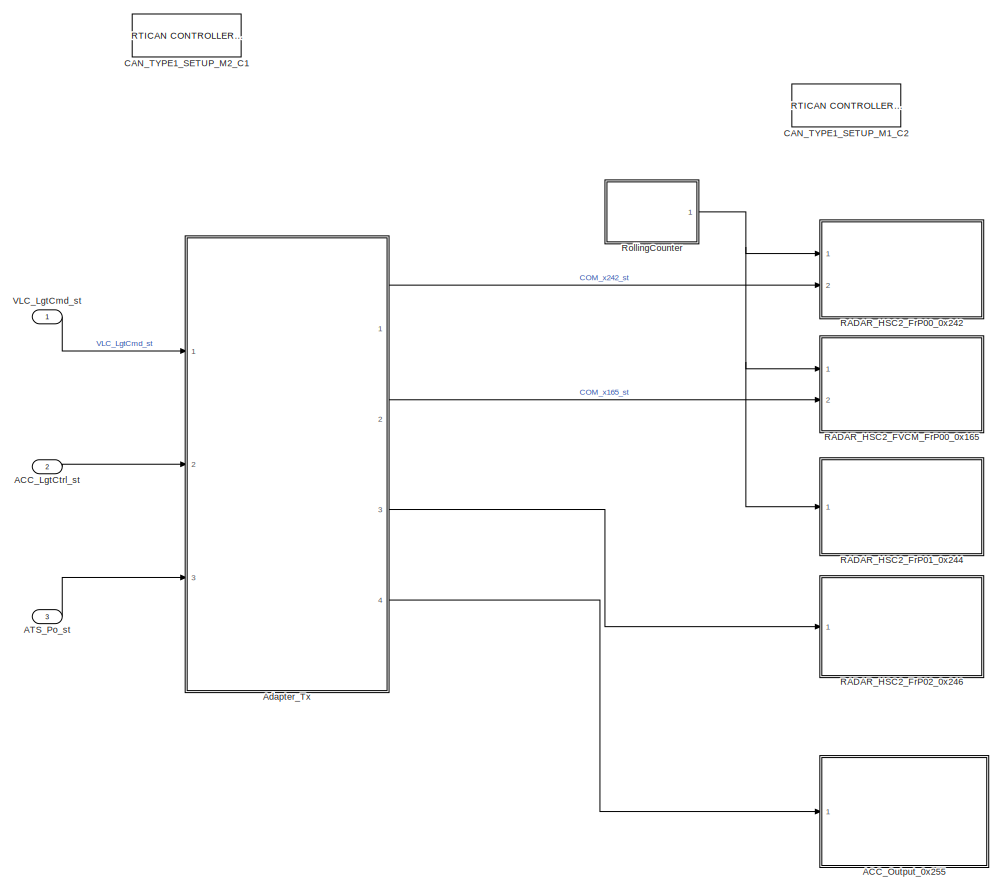
[diagram: root canvas - part 1/2, left side, full height]
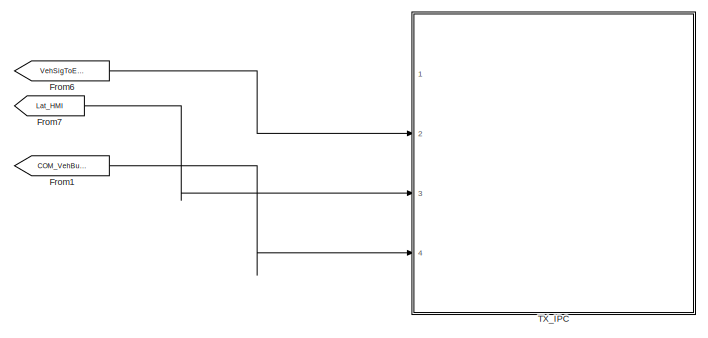
[diagram: root canvas - part 2/2, middle right region]
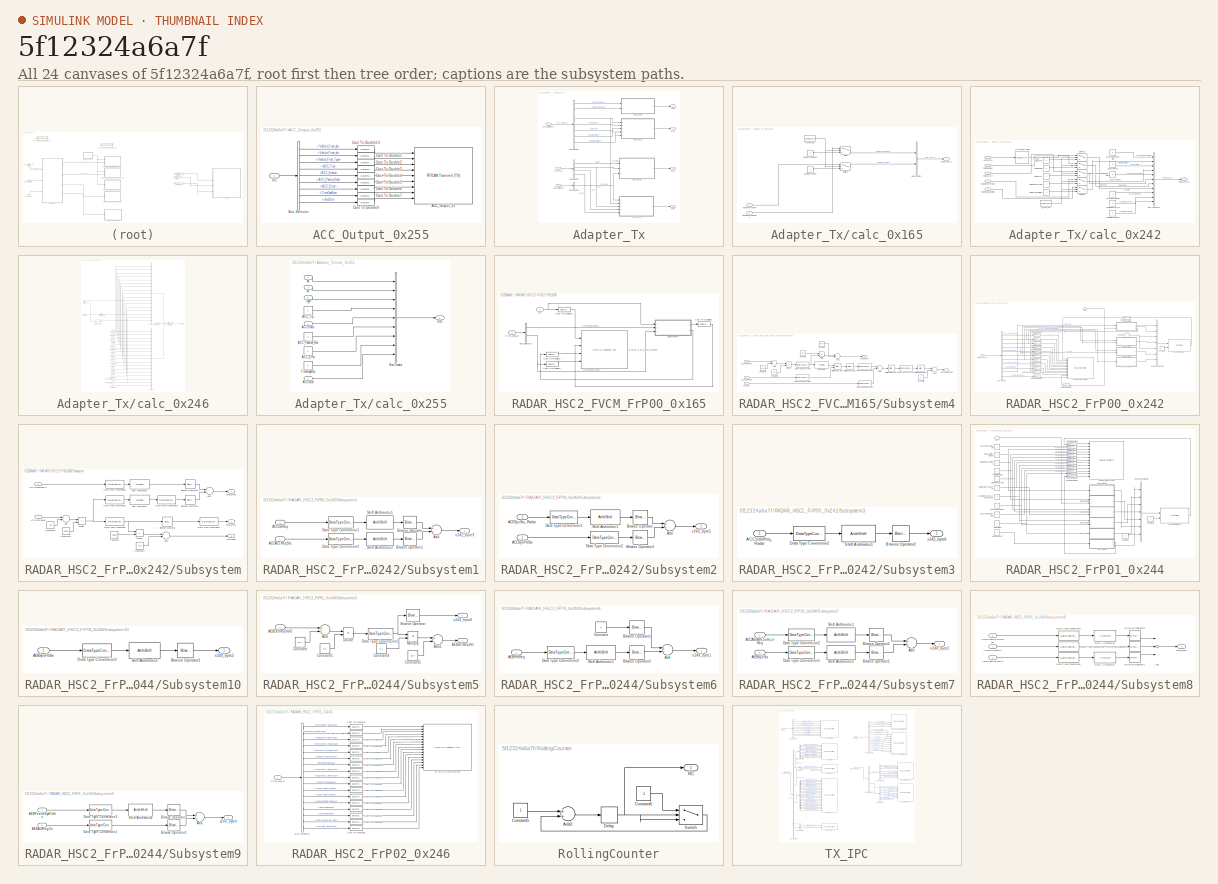
[diagram: thumbnail index - all 24 canvases of the model, root first then tree order]
MODEL slx_5f12324a6a7f
KIND model
CONFIG AbsTol = auto
CONFIG EnableMultiTasking = off
CONFIG FixedStep = 0.005
CONFIG MaxStep = auto
CONFIG MinStep = auto
CONFIG PostLoadFcn = if any(exist('dsrtsu_mdlpostloadfcn', 'file') ~= 0), dsrtsu_mdlpostloadfcn('Execute', bdroot); end
CONFIG RelTol = 1e-3
CONFIG SampleTimeConstraint = Unconstrained
CONFIG Solver = FixedStepDiscrete
CONFIG SolverName = FixedStepDiscrete
CONFIG StartTime = 0.0
CONFIG StopTime = 10.0
BLOCK [Inport] ACC_LgtCtrl_st
  BusOutputAsStruct = on
  IconDisplay = Port number
  OutDataTypeStr = Bus: ACC_LGTCTRL_ST
  Port = 2
BLOCK [SubSystem] ACC_Output_0x255
  Ports = [1]
  RequestExecContextInheritance = off
BLOCK [Reference] ACC_Output_0x255/ACC_Output_01  REF=rtican/RTICAN
Transmit (TX) 
  AttributesFormatString = Group Id: RTICAN3\n
  Ports = [9, 4]
  SourceBlock = rtican/RTICAN\nTransmit (TX)
  SourceProductName = dSPACE RTI CAN Blockset
  SourceType = RTI
BLOCK [BusSelector] ACC_Output_0x255/Bus Selector
  OutputAsBus = off
  OutputSignals = Vehicle_Front_dy,Vehicle_Front_dx,Vehicle_Front_Type,ACC_Tip,ACC_Status,ACC_Passive_Rea,ACC_Error,TimeGapRes,vSetDis
  Ports = [1, 9]
BLOCK [DataTypeConversion] ACC_Output_0x255/Cast To Double1
  OutDataTypeStr = double
  RndMeth = Floor
  SaturateOnIntegerOverflow = off
BLOCK [DataTypeConversion] ACC_Output_0x255/Cast To Double13
  OutDataTypeStr = double
  RndMeth = Floor
  SaturateOnIntegerOverflow = off
BLOCK [DataTypeConversion] ACC_Output_0x255/Cast To Double2
  OutDataTypeStr = double
  RndMeth = Floor
  SaturateOnIntegerOverflow = off
BLOCK [DataTypeConversion] ACC_Output_0x255/Cast To Double3
  OutDataTypeStr = double
  RndMeth = Floor
  SaturateOnIntegerOverflow = off
BLOCK [DataTypeConversion] ACC_Output_0x255/Cast To Double4
  OutDataTypeStr = double
  RndMeth = Floor
  SaturateOnIntegerOverflow = off
BLOCK [DataTypeConversion] ACC_Output_0x255/Cast To Double5
  OutDataTypeStr = double
  RndMeth = Floor
  SaturateOnIntegerOverflow = off
BLOCK [DataTypeConversion] ACC_Output_0x255/Cast To Double6
  OutDataTypeStr = double
  RndMeth = Floor
  SaturateOnIntegerOverflow = off
BLOCK [DataTypeConversion] ACC_Output_0x255/Cast To Double7
  OutDataTypeStr = double
  RndMeth = Floor
  SaturateOnIntegerOverflow = off
BLOCK [DataTypeConversion] ACC_Output_0x255/Cast To Double8
  OutDataTypeStr = double
  RndMeth = Floor
  SaturateOnIntegerOverflow = off
BLOCK [Inport] ACC_Output_0x255/In1
  IconDisplay = Port number
BLOCK [Inport] ATS_Po_st
  IconDisplay = Port number
  OutDataTypeStr = Bus: ATS_PO_ST
  Port = 3
BLOCK [SubSystem] Adapter_Tx
  Ports = [3, 4]
  RequestExecContextInheritance = off
BLOCK [Inport] Adapter_Tx/ACC_LgtCtrl_st
  IconDisplay = Port number
  Port = 2
BLOCK [Inport] Adapter_Tx/ATS_Po_st
  IconDisplay = Port number
  Port = 3
BLOCK [BusSelector] Adapter_Tx/Bus Selector
  OutputAsBus = off
  OutputSignals = Valid,dx,dy,Type
  Ports = [1, 4]
BLOCK [BusSelector] Adapter_Tx/Bus Selector1
  OutputAsBus = off
  OutputSignals = ACCvSet
  Ports = [1, 1]
BLOCK [BusSelector] Adapter_Tx/Bus Selector4
  OutputAsBus = off
  OutputSignals = EngineTorqReq,EngineTorqReqSt,ACCState,CDDEnable,CDDAxtar,CDDDriveoffReq,CDDStandstillReq
  Ports = [1, 7]
BLOCK [Inport] Adapter_Tx/VLC_LgtCmd_st
  IconDisplay = Port number
  OutDataTypeStr = Bus: VLC_LGTCMD_ST
BLOCK [SubSystem] Adapter_Tx/calc_0x165
  Ports = [2, 1]
  RequestExecContextInheritance = off
BLOCK [Inport] Adapter_Tx/calc_0x165/<EngineTorqReq>
  IconDisplay = Port number
BLOCK [Inport] Adapter_Tx/calc_0x165/<EngineTorqReqSt>
  IconDisplay = Port number
  Port = 2
BLOCK [BusCreator] Adapter_Tx/calc_0x165/Bus Creator3
  DisplayOption = bar
  InheritFromInputs = off
  Inputs = 2
  NonVirtualBus = on
  OutDataTypeStr = Bus: x165
  Ports = [2, 1]
BLOCK [Outport] Adapter_Tx/calc_0x165/COM_x165_st
  IconDisplay = Port number
BLOCK [Constant] Adapter_Tx/calc_0x165/EngineTorqReq
  OutDataTypeStr = single
  Value = 0
BLOCK [Constant] Adapter_Tx/calc_0x165/EngineTorqReqSt
  OutDataTypeStr = boolean
  Value = 0
BLOCK [Constant] Adapter_Tx/calc_0x165/P_x165_On
  Value = P_x165_On
BLOCK [Switch] Adapter_Tx/calc_0x165/Switch
  Criteria = u2 > Threshold
  InputSameDT = off
  OutDataTypeStr = Inherit: Inherit via back propagation
  SaturateOnIntegerOverflow = off
BLOCK [Switch] Adapter_Tx/calc_0x165/Switch1
  Criteria = u2 > Threshold
  InputSameDT = off
  OutDataTypeStr = Inherit: Inherit via back propagation
  SaturateOnIntegerOverflow = off
BLOCK [SubSystem] Adapter_Tx/calc_0x242
  Ports = [5, 1]
  RequestExecContextInheritance = off
BLOCK [Lookup_n-D] Adapter_Tx/calc_0x242/1-D Lookup Table
  BreakpointsForDimension1 = [0,1,2,3,4]
  InternalRulePriority = Speed
  NumberOfTableDimensions = 1
  Ports = [1, 1]
  RndMeth = Simplest
  Table = [0,1,2,5,3]
BLOCK [Inport] Adapter_Tx/calc_0x242/<ACCState>
  IconDisplay = Port number
BLOCK [Inport] Adapter_Tx/calc_0x242/<CDDAxtar>
  IconDisplay = Port number
  Port = 3
BLOCK [Inport] Adapter_Tx/calc_0x242/<CDDDriveoffReq>
  IconDisplay = Port number
  Port = 4
BLOCK [Inport] Adapter_Tx/calc_0x242/<CDDEnable>
  IconDisplay = Port number
  Port = 2
BLOCK [Inport] Adapter_Tx/calc_0x242/<CDDStandstillReq>
  IconDisplay = Port number
  Port = 5
BLOCK [Constant] Adapter_Tx/calc_0x242/ACCAccReqValTolMax
  OutDataTypeStr = single
  Value = 0
BLOCK [Constant] Adapter_Tx/calc_0x242/ACCAccReqValTolMin
  OutDataTypeStr = single
  Value = 0
BLOCK [Constant] Adapter_Tx/calc_0x242/ACCMinBrkReqSts
  OutDataTypeStr = boolean
  Value = 0
BLOCK [Constant] Adapter_Tx/calc_0x242/ACCReqBrkPrfrd
  OutDataTypeStr = boolean
  Value = 0
BLOCK [Constant] Adapter_Tx/calc_0x242/ACCState
  OutDataTypeStr = single
  Value = 0
BLOCK [Constant] Adapter_Tx/calc_0x242/ACCSysFltSts
  OutDataTypeStr = single
  Value = 0
BLOCK [BusCreator] Adapter_Tx/calc_0x242/Bus Creator1
  DisplayOption = bar
  InheritFromInputs = on
  Inputs = 11
  NonVirtualBus = on
  OutDataTypeStr = Bus: x242
  Ports = [11, 1]
BLOCK [Constant] Adapter_Tx/calc_0x242/CDDAxtar
  OutDataTypeStr = single
  Value = 0
BLOCK [Constant] Adapter_Tx/calc_0x242/CDDDriveoffReq
  OutDataTypeStr = boolean
  Value = 0
BLOCK [Constant] Adapter_Tx/calc_0x242/CDDEnable
  OutDataTypeStr = boolean
  Value = 0
BLOCK [Constant] Adapter_Tx/calc_0x242/CDDStandstillReq
  OutDataTypeStr = boolean
  Value = 0
BLOCK [Outport] Adapter_Tx/calc_0x242/COM_x242_st
  IconDisplay = Port number
BLOCK [Constant] Adapter_Tx/calc_0x242/ChACCShtdwnMd
  OutDataTypeStr = single
  Value = 0
BLOCK [Constant] Adapter_Tx/calc_0x242/P_x242_On
  Value = P_x242_On
BLOCK [Switch] Adapter_Tx/calc_0x242/Switch2
  Criteria = u2 > Threshold
  InputSameDT = off
  OutDataTypeStr = Inherit: Inherit via back propagation
  SaturateOnIntegerOverflow = off
BLOCK [Switch] Adapter_Tx/calc_0x242/Switch3
  Criteria = u2 > Threshold
  InputSameDT = off
  OutDataTypeStr = Inherit: Inherit via back propagation
  SaturateOnIntegerOverflow = off
BLOCK [Switch] Adapter_Tx/calc_0x242/Switch4
  Criteria = u2 > Threshold
  InputSameDT = off
  OutDataTypeStr = Inherit: Inherit via back propagation
  SaturateOnIntegerOverflow = off
BLOCK [Switch] Adapter_Tx/calc_0x242/Switch5
  Criteria = u2 > Threshold
  InputSameDT = off
  OutDataTypeStr = Inherit: Inherit via back propagation
  SaturateOnIntegerOverflow = off
BLOCK [Switch] Adapter_Tx/calc_0x242/Switch6
  Criteria = u2 > Threshold
  InputSameDT = off
  OutDataTypeStr = Inherit: Inherit via back propagation
  SaturateOnIntegerOverflow = off
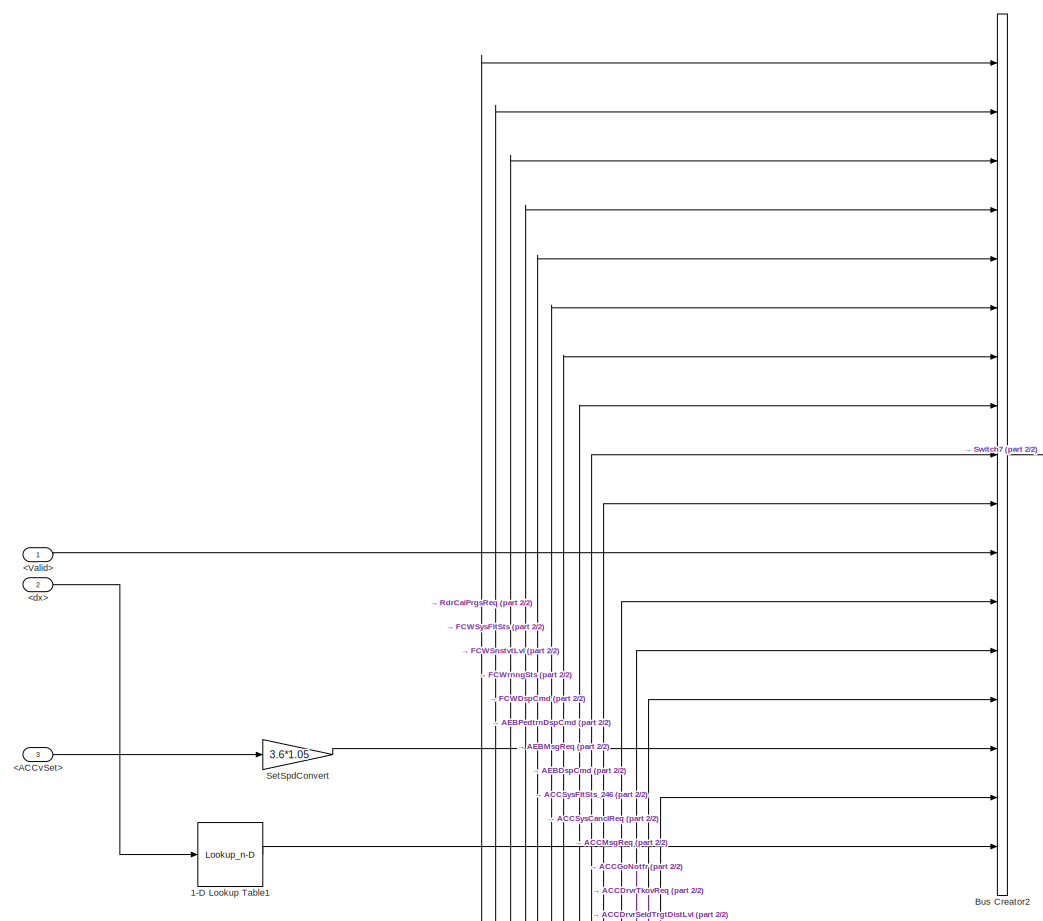
[diagram: Adapter_Tx/calc_0x246 - part 1/2, top center region]
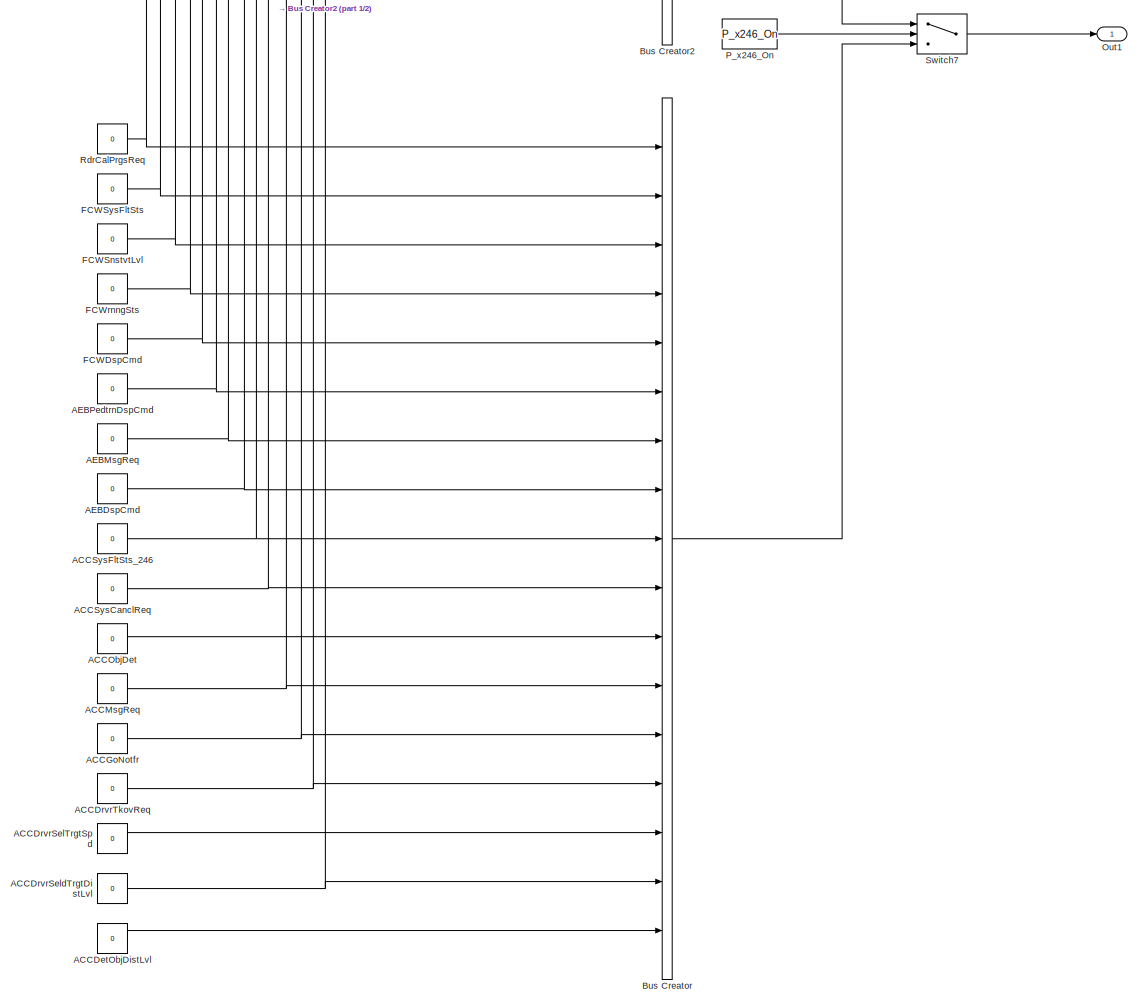
[diagram: Adapter_Tx/calc_0x246 - part 2/2, full width, bottom band]
BLOCK [SubSystem] Adapter_Tx/calc_0x246
  Ports = [3, 1]
  RequestExecContextInheritance = off
BLOCK [Lookup_n-D] Adapter_Tx/calc_0x246/1-D Lookup Table1
  BreakpointsForDimension1 = [5,10,20,30,40]
  BreakpointsForDimension1FirstPoint = 10
  BreakpointsForDimension1Spacing = 12
  BreakpointsForDimension2FirstPoint = 10
  BreakpointsForDimension2Spacing = 12
  IndexSearchMethod = Linear search
  InternalRulePriority = Speed
  InterpMethod = Flat
  LookupTableObject = ''
  NumberOfTableDimensions = 1
  Ports = [1, 1]
  RndMeth = Simplest
  Table = [1,2,3,4,5]
BLOCK [Inport] Adapter_Tx/calc_0x246/<ACCvSet>
  IconDisplay = Port number
  Port = 3
BLOCK [Inport] Adapter_Tx/calc_0x246/<Valid>
  IconDisplay = Port number
BLOCK [Inport] Adapter_Tx/calc_0x246/<dx>
  IconDisplay = Port number
  Port = 2
BLOCK [Constant] Adapter_Tx/calc_0x246/ACCDetObjDistLvl
  OutDataTypeStr = single
  Value = 0
BLOCK [Constant] Adapter_Tx/calc_0x246/ACCDrvrSelTrgtSpd
  OutDataTypeStr = single
  Value = 0
BLOCK [Constant] Adapter_Tx/calc_0x246/ACCDrvrSeldTrgtDistLvl
  OutDataTypeStr = single
  Value = 0
BLOCK [Constant] Adapter_Tx/calc_0x246/ACCDrvrTkovReq
  OutDataTypeStr = boolean
  Value = 0
BLOCK [Constant] Adapter_Tx/calc_0x246/ACCGoNotfr
  OutDataTypeStr = boolean
  Value = 0
BLOCK [Constant] Adapter_Tx/calc_0x246/ACCMsgReq
  OutDataTypeStr = single
  Value = 0
BLOCK [Constant] Adapter_Tx/calc_0x246/ACCObjDet
  OutDataTypeStr = boolean
  Value = 0
BLOCK [Constant] Adapter_Tx/calc_0x246/ACCSysCanclReq
  OutDataTypeStr = single
  Value = 0
BLOCK [Constant] Adapter_Tx/calc_0x246/ACCSysFltSts_246
  OutDataTypeStr = single
  Value = 0
BLOCK [Constant] Adapter_Tx/calc_0x246/AEBDspCmd
  OutDataTypeStr = single
  Value = 0
BLOCK [Constant] Adapter_Tx/calc_0x246/AEBMsgReq
  OutDataTypeStr = single
  Value = 0
BLOCK [Constant] Adapter_Tx/calc_0x246/AEBPedtrnDspCmd
  OutDataTypeStr = single
  Value = 0
BLOCK [BusCreator] Adapter_Tx/calc_0x246/Bus Creator
  DisplayOption = bar
  InheritFromInputs = off
  Inputs = 17
  NonVirtualBus = on
  OutDataTypeStr = Bus: x246
  Ports = [17, 1]
BLOCK [BusCreator] Adapter_Tx/calc_0x246/Bus Creator2
  DisplayOption = bar
  InheritFromInputs = off
  Inputs = 17
  NonVirtualBus = on
  OutDataTypeStr = Bus: x246
  Ports = [17, 1]
BLOCK [Constant] Adapter_Tx/calc_0x246/FCWDspCmd
  OutDataTypeStr = single
  Value = 0
BLOCK [Constant] Adapter_Tx/calc_0x246/FCWSnstvtLvl
  OutDataTypeStr = single
  Value = 0
BLOCK [Constant] Adapter_Tx/calc_0x246/FCWSysFltSts
  OutDataTypeStr = single
  Value = 0
BLOCK [Constant] Adapter_Tx/calc_0x246/FCWrnngSts
  OutDataTypeStr = single
  Value = 0
BLOCK [Outport] Adapter_Tx/calc_0x246/Out1
  IconDisplay = Port number
BLOCK [Constant] Adapter_Tx/calc_0x246/P_x246_On
  Value = P_x246_On
BLOCK [Constant] Adapter_Tx/calc_0x246/RdrCalPrgsReq
  OutDataTypeStr = single
  Value = 0
BLOCK [Gain] Adapter_Tx/calc_0x246/SetSpdConvert
  Gain = 3.6*1.05
  OutDataTypeStr = Inherit: Inherit via internal rule
  ParamDataTypeStr = Inherit: Inherit via internal rule
  SaturateOnIntegerOverflow = off
BLOCK [Switch] Adapter_Tx/calc_0x246/Switch7
  Criteria = u2 > Threshold
  InputSameDT = off
  SaturateOnIntegerOverflow = off
BLOCK [SubSystem] Adapter_Tx/calc_0x255
  Ports = [5, 1]
  RequestExecContextInheritance = off
BLOCK [Inport] Adapter_Tx/calc_0x255/ACCState
  IconDisplay = Port number
  Port = 2
BLOCK [Constant] Adapter_Tx/calc_0x255/ACC_Error
  OutDataTypeStr = single
  Value = 0
BLOCK [Constant] Adapter_Tx/calc_0x255/ACC_Passive_Res
  OutDataTypeStr = single
  Value = 0
BLOCK [Constant] Adapter_Tx/calc_0x255/ACC_Tip
  OutDataTypeStr = single
  Value = 0
BLOCK [Inport] Adapter_Tx/calc_0x255/ACCvSet
  IconDisplay = Port number
BLOCK [BusCreator] Adapter_Tx/calc_0x255/Bus Creator
  DisplayOption = bar
  InheritFromInputs = off
  Inputs = 9
  NonVirtualBus = on
  OutDataTypeStr = Bus: x255
  Ports = [9, 1]
BLOCK [Outport] Adapter_Tx/calc_0x255/Out1
  IconDisplay = Port number
BLOCK [Constant] Adapter_Tx/calc_0x255/TimeGapRes
  OutDataTypeStr = single
  Value = 0
BLOCK [Inport] Adapter_Tx/calc_0x255/Type
  IconDisplay = Port number
  Port = 5
BLOCK [Inport] Adapter_Tx/calc_0x255/dx
  IconDisplay = Port number
  Port = 3
BLOCK [Inport] Adapter_Tx/calc_0x255/dy
  IconDisplay = Port number
  Port = 4
BLOCK [Outport] Adapter_Tx/x165
  IconDisplay = Port number
  OutDataTypeStr = Bus: x165
  Port = 2
BLOCK [Outport] Adapter_Tx/x242
  IconDisplay = Port number
  OutDataTypeStr = Bus: x242
BLOCK [Outport] Adapter_Tx/x246
  IconDisplay = Port number
  OutDataTypeStr = Bus: x246
  Port = 3
BLOCK [Outport] Adapter_Tx/x255
  IconDisplay = Port number
  OutDataTypeStr = Bus: x255
  Port = 4
BLOCK [Reference] CAN_TYPE1_SETUP_M1_C2  REF=rtican/RTICAN
CONTROLLER SETUP 
  AttributesFormatString = Group Id: RTICAN4\n
  Ports = []
  SourceBlock = rtican/RTICAN\nCONTROLLER SETUP
  SourceProductName = dSPACE RTI CAN Blockset
  SourceType = RTI
BLOCK [Reference] CAN_TYPE1_SETUP_M2_C1  REF=rtican/RTICAN
CONTROLLER SETUP 
  AttributesFormatString = Group Id: RTICAN3\n
  Ports = []
  SourceBlock = rtican/RTICAN\nCONTROLLER SETUP
  SourceProductName = dSPACE RTI CAN Blockset
  SourceType = RTI
BLOCK [From] From1
  GotoTag = COM_VehBus_st
BLOCK [From] From6
  GotoTag = VehSigToEQ4
BLOCK [From] From7
  GotoTag = Lat_HMI
BLOCK [SubSystem] RADAR_HSC2_FVCM_FrP00_0x165
  Ports = [2]
  RequestExecContextInheritance = off
BLOCK [BusSelector] RADAR_HSC2_FVCM_FrP00_0x165/Bus Selector1
  OutputAsBus = off
  OutputSignals = ACCToqReqValHSC2,ACCToqReqStsHSC2
  Ports = [1, 2]
BLOCK [Inport] RADAR_HSC2_FVCM_FrP00_0x165/COM_x165_st
  IconDisplay = Port number
  Port = 2
BLOCK [DataTypeConversion] RADAR_HSC2_FVCM_FrP00_0x165/Cast To Double11
  OutDataTypeStr = double
  RndMeth = Floor
  SaturateOnIntegerOverflow = off
BLOCK [DataTypeConversion] RADAR_HSC2_FVCM_FrP00_0x165/Cast To Double12
  OutDataTypeStr = double
  RndMeth = Floor
  SaturateOnIntegerOverflow = off
BLOCK [DataTypeConversion] RADAR_HSC2_FVCM_FrP00_0x165/Cast To Double13
  OutDataTypeStr = double
  RndMeth = Floor
  SaturateOnIntegerOverflow = off
BLOCK [DataTypeConversion] RADAR_HSC2_FVCM_FrP00_0x165/Cast To Double31
  OutDataTypeStr = double
  RndMeth = Floor
  SaturateOnIntegerOverflow = off
BLOCK [Reference] RADAR_HSC2_FVCM_FrP00_0x165/RADAR_HSC2_FVCM_FrP00  REF=rtican/RTICAN
Transmit (TX) 
  AttributesFormatString = Group Id: RTICAN1\n
  Ports = [4, 4]
  SourceBlock = rtican/RTICAN\nTransmit (TX)
  SourceProductName = dSPACE RTI CAN Blockset
  SourceType = RTI
BLOCK [Inport] RADAR_HSC2_FVCM_FrP00_0x165/RC
  IconDisplay = Port number
BLOCK [SubSystem] RADAR_HSC2_FVCM_FrP00_0x165/Subsystem4
  Ports = [3, 2]
  RequestExecContextInheritance = off
BLOCK [Inport] RADAR_HSC2_FVCM_FrP00_0x165/Subsystem4/ACCAlvRC
  IconDisplay = Port number
BLOCK [Inport] RADAR_HSC2_FVCM_FrP00_0x165/Subsystem4/ACCToqReqSts
  IconDisplay = Port number
  Port = 3
BLOCK [Inport] RADAR_HSC2_FVCM_FrP00_0x165/Subsystem4/ACCToqReqVal
  IconDisplay = Port number
  Port = 2
BLOCK [Outport] RADAR_HSC2_FVCM_FrP00_0x165/Subsystem4/ACCToqReqValPV
  IconDisplay = Port number
BLOCK [Sum] RADAR_HSC2_FVCM_FrP00_0x165/Subsystem4/Add
  InputSameDT = off
  OutDataTypeStr = Inherit: Inherit via internal rule
  Ports = [2, 1]
  SaturateOnIntegerOverflow = off
BLOCK [Sum] RADAR_HSC2_FVCM_FrP00_0x165/Subsystem4/Add1
  InputSameDT = off
  OutDataTypeStr = Inherit: Inherit via internal rule
  Ports = [2, 1]
  SaturateOnIntegerOverflow = off
BLOCK [Sum] RADAR_HSC2_FVCM_FrP00_0x165/Subsystem4/Add2
  InputSameDT = off
  OutDataTypeStr = Inherit: Inherit via internal rule
  Ports = [2, 1]
  SaturateOnIntegerOverflow = off
BLOCK [Sum] RADAR_HSC2_FVCM_FrP00_0x165/Subsystem4/Add3
  InputSameDT = off
  Inputs = +-
  OutDataTypeStr = Inherit: Inherit via internal rule
  Ports = [2, 1]
  SaturateOnIntegerOverflow = off
BLOCK [Reference] RADAR_HSC2_FVCM_FrP00_0x165/Subsystem4/Bitwise Operator1  REF=simulink/Logic and Bit
Operations/Bitwise
Operator
  Ports = [1, 1]
  SourceBlock = simulink/Logic and Bit\nOperations/Bitwise\nOperator
  SourceProductBaseCode = SL
  SourceProductName = Simulink
  SourceType = Bitwise Operator
BLOCK [Reference] RADAR_HSC2_FVCM_FrP00_0x165/Subsystem4/Bitwise Operator2  REF=simulink/Logic and Bit
Operations/Bitwise
Operator
  Ports = [1, 1]
  SourceBlock = simulink/Logic and Bit\nOperations/Bitwise\nOperator
  SourceProductBaseCode = SL
  SourceProductName = Simulink
  SourceType = Bitwise Operator
BLOCK [Reference] RADAR_HSC2_FVCM_FrP00_0x165/Subsystem4/Bitwise Operator3  REF=simulink/Logic and Bit
Operations/Bitwise
Operator
  Ports = [1, 1]
  SourceBlock = simulink/Logic and Bit\nOperations/Bitwise\nOperator
  SourceProductBaseCode = SL
  SourceProductName = Simulink
  SourceType = Bitwise Operator
BLOCK [Reference] RADAR_HSC2_FVCM_FrP00_0x165/Subsystem4/Bitwise Operator4  REF=simulink/Logic and Bit
Operations/Bitwise
Operator
  Ports = [2, 1]
  SourceBlock = simulink/Logic and Bit\nOperations/Bitwise\nOperator
  SourceProductBaseCode = SL
  SourceProductName = Simulink
  SourceType = Bitwise Operator
BLOCK [Constant] RADAR_HSC2_FVCM_FrP00_0x165/Subsystem4/Constant
  Value = 0.5
BLOCK [Constant] RADAR_HSC2_FVCM_FrP00_0x165/Subsystem4/Constant1
  Value = 848
BLOCK [Constant] RADAR_HSC2_FVCM_FrP00_0x165/Subsystem4/Constant4
  Value = 848
BLOCK [Constant] RADAR_HSC2_FVCM_FrP00_0x165/Subsystem4/Constant5
  Value = 0.5
BLOCK [Constant] RADAR_HSC2_FVCM_FrP00_0x165/Subsystem4/Constant6
  OutDataTypeStr = uint16
BLOCK [DataTypeConversion] RADAR_HSC2_FVCM_FrP00_0x165/Subsystem4/Data Type Conversion
  OutDataTypeStr = uint16
  RndMeth = Floor
  SaturateOnIntegerOverflow = off
BLOCK [DataTypeConversion] RADAR_HSC2_FVCM_FrP00_0x165/Subsystem4/Data Type Conversion1
  OutDataTypeStr = uint16
  RndMeth = Floor
  SaturateOnIntegerOverflow = off
BLOCK [DataTypeConversion] RADAR_HSC2_FVCM_FrP00_0x165/Subsystem4/Data Type Conversion2
  OutDataTypeStr = uint16
  RndMeth = Floor
  SaturateOnIntegerOverflow = off
BLOCK [DataTypeConversion] RADAR_HSC2_FVCM_FrP00_0x165/Subsystem4/Data Type Conversion3
  OutDataTypeStr = uint16
  RndMeth = Floor
  SaturateOnIntegerOverflow = off
BLOCK [DataTypeConversion] RADAR_HSC2_FVCM_FrP00_0x165/Subsystem4/Data Type Conversion4
  OutDataTypeStr = uint16
  RndMeth = Floor
  SaturateOnIntegerOverflow = off
BLOCK [Product] RADAR_HSC2_FVCM_FrP00_0x165/Subsystem4/Divide
  InputSameDT = off
  Inputs = */
  OutDataTypeStr = Inherit: Inherit via internal rule
  Ports = [2, 1]
  RndMeth = Floor
  SaturateOnIntegerOverflow = off
BLOCK [Product] RADAR_HSC2_FVCM_FrP00_0x165/Subsystem4/Multiply
  InputSameDT = off
  OutDataTypeStr = Inherit: Inherit via internal rule
  Ports = [2, 1]
  RndMeth = Floor
  SaturateOnIntegerOverflow = off
BLOCK [ArithShift] RADAR_HSC2_FVCM_FrP00_0x165/Subsystem4/Shift Arithmetic1
  BitShiftDirection = Left
  BitShiftNumber = 2
  InputPortMap = u0
  Ports = [1, 1]
BLOCK [Outport] RADAR_HSC2_FVCM_FrP00_0x165/Subsystem4/ToqReqVal
  IconDisplay = Port number
  Port = 2
BLOCK [SubSystem] RADAR_HSC2_FrP00_0x242
  Ports = [2]
  RequestExecContextInheritance = off
BLOCK [BusSelector] RADAR_HSC2_FrP00_0x242/Bus Selector
  OutputAsBus = off
  OutputSignals = ACCAccReqValTolMin,CDDStandstillReq,ACCSysFltSts,ACCState,ChACCShtdwnMd,CDDEnable,CDDDriveoffReq,ACCAccReqValTolMax,ACCReqBrkPrfrd,CDDAxtar,ACCMinBrkReqSts
  Ports = [1, 11]
BLOCK [Inport] RADAR_HSC2_FrP00_0x242/COM_x242_st
  IconDisplay = Port number
  Port = 2
BLOCK [DataTypeConversion] RADAR_HSC2_FrP00_0x242/Cast To Double
  OutDataTypeStr = double
  RndMeth = Floor
  SaturateOnIntegerOverflow = off
BLOCK [DataTypeConversion] RADAR_HSC2_FrP00_0x242/Cast To Double1
  OutDataTypeStr = double
  RndMeth = Floor
  SaturateOnIntegerOverflow = off
BLOCK [DataTypeConversion] RADAR_HSC2_FrP00_0x242/Cast To Double10
  OutDataTypeStr = double
  RndMeth = Floor
  SaturateOnIntegerOverflow = off
BLOCK [DataTypeConversion] RADAR_HSC2_FrP00_0x242/Cast To Double2
  OutDataTypeStr = double
  RndMeth = Floor
  SaturateOnIntegerOverflow = off
BLOCK [DataTypeConversion] RADAR_HSC2_FrP00_0x242/Cast To Double3
  OutDataTypeStr = double
  RndMeth = Floor
  SaturateOnIntegerOverflow = off
BLOCK [DataTypeConversion] RADAR_HSC2_FrP00_0x242/Cast To Double30
  OutDataTypeStr = double
  RndMeth = Floor
  SaturateOnIntegerOverflow = off
BLOCK [DataTypeConversion] RADAR_HSC2_FrP00_0x242/Cast To Double32
  OutDataTypeStr = double
  RndMeth = Floor
  SaturateOnIntegerOverflow = off
BLOCK [DataTypeConversion] RADAR_HSC2_FrP00_0x242/Cast To Double4
  OutDataTypeStr = double
  RndMeth = Floor
  SaturateOnIntegerOverflow = off
BLOCK [DataTypeConversion] RADAR_HSC2_FrP00_0x242/Cast To Double5
  OutDataTypeStr = double
  RndMeth = Floor
  SaturateOnIntegerOverflow = off
BLOCK [DataTypeConversion] RADAR_HSC2_FrP00_0x242/Cast To Double6
  OutDataTypeStr = double
  RndMeth = Floor
  SaturateOnIntegerOverflow = off
BLOCK [DataTypeConversion] RADAR_HSC2_FrP00_0x242/Cast To Double7
  OutDataTypeStr = double
  RndMeth = Floor
  SaturateOnIntegerOverflow = off
BLOCK [DataTypeConversion] RADAR_HSC2_FrP00_0x242/Cast To Double8
  OutDataTypeStr = double
  RndMeth = Floor
  SaturateOnIntegerOverflow = off
BLOCK [DataTypeConversion] RADAR_HSC2_FrP00_0x242/Cast To Double9
  OutDataTypeStr = double
  RndMeth = Floor
  SaturateOnIntegerOverflow = off
BLOCK [Constant] RADAR_HSC2_FrP00_0x242/Constant2
  OutDataTypeStr = uint8
  Value = 0
BLOCK [Constant] RADAR_HSC2_FrP00_0x242/Constant3
  OutDataTypeStr = uint8
  Value = 7
BLOCK [Reference] RADAR_HSC2_FrP00_0x242/RADAR_HSC2_FrP00  REF=rtican/RTICAN
Transmit (TX) 
  AttributesFormatString = Group Id: RTICAN1\n
  Ports = [13, 4]
  SourceBlock = rtican/RTICAN\nTransmit (TX)
  SourceProductName = dSPACE RTI CAN Blockset
  SourceType = RTI
BLOCK [Inport] RADAR_HSC2_FrP00_0x242/RC
  IconDisplay = Port number
BLOCK [S-Function] RADAR_HSC2_FrP00_0x242/S-Function Builder
  CopyFcn = set_param(gcbh,'LinkStatus','none')
  EnableBusSupport = off
  FunctionName = CheckSum_0x242
  InitFcn = try, set_param(gcb,'FunctionName','CheckSum_0x242'), end
  OpenFcn = sfunctionwizard(gcbh)
  Ports = [2, 1]
  PreSaveFcn = try, set_param(gcb,'FunctionName','CheckSum_0x242'), end
  SFcnIsStateOwnerBlock = off
  SFunctionDeploymentMode = off
  SFunctionModules = CheckSum_0x242_wrapper
BLOCK [SubSystem] RADAR_HSC2_FrP00_0x242/Subsystem
  Ports = [2, 3]
  RequestExecContextInheritance = off
BLOCK [Inport] RADAR_HSC2_FrP00_0x242/Subsystem/ACCAccReqVal
  IconDisplay = Port number
BLOCK [Inport] RADAR_HSC2_FrP00_0x242/Subsystem/ACCSysAlvRlngCtr
  IconDisplay = Port number
  Port = 2
BLOCK [Outport] RADAR_HSC2_FrP00_0x242/Subsystem/AccReqVal
  IconDisplay = Port number
  Port = 3
BLOCK [Sum] RADAR_HSC2_FrP00_0x242/Subsystem/Add
  InputSameDT = off
  OutDataTypeStr = Inherit: Inherit via internal rule
  Ports = [2, 1]
  SaturateOnIntegerOverflow = off
BLOCK [Sum] RADAR_HSC2_FrP00_0x242/Subsystem/Add1
  InputSameDT = off
  OutDataTypeStr = Inherit: Inherit via internal rule
  Ports = [2, 1]
  SaturateOnIntegerOverflow = off
BLOCK [Sum] RADAR_HSC2_FrP00_0x242/Subsystem/Add2
  InputSameDT = off
  Inputs = +-
  OutDataTypeStr = Inherit: Inherit via internal rule
  Ports = [2, 1]
  SaturateOnIntegerOverflow = off
BLOCK [Reference] RADAR_HSC2_FrP00_0x242/Subsystem/Bitwise Operator  REF=simulink/Logic and Bit
Operations/Bitwise
Operator
  Ports = [1, 1]
  SourceBlock = simulink/Logic and Bit\nOperations/Bitwise\nOperator
  SourceProductBaseCode = SL
  SourceProductName = Simulink
  SourceType = Bitwise Operator
BLOCK [Reference] RADAR_HSC2_FrP00_0x242/Subsystem/Bitwise Operator1  REF=simulink/Logic and Bit
Operations/Bitwise
Operator
  Ports = [1, 1]
  SourceBlock = simulink/Logic and Bit\nOperations/Bitwise\nOperator
  SourceProductBaseCode = SL
  SourceProductName = Simulink
  SourceType = Bitwise Operator
BLOCK [Reference] RADAR_HSC2_FrP00_0x242/Subsystem/Bitwise Operator2  REF=simulink/Logic and Bit
Operations/Bitwise
Operator
  Ports = [1, 1]
  SourceBlock = simulink/Logic and Bit\nOperations/Bitwise\nOperator
  SourceProductBaseCode = SL
  SourceProductName = Simulink
  SourceType = Bitwise Operator
BLOCK [Constant] RADAR_HSC2_FrP00_0x242/Subsystem/Constant
  Value = 0.005
BLOCK [Constant] RADAR_HSC2_FrP00_0x242/Subsystem/Constant1
  Value = 7.22
BLOCK [Constant] RADAR_HSC2_FrP00_0x242/Subsystem/Constant2
  Value = 7.22
BLOCK [Constant] RADAR_HSC2_FrP00_0x242/Subsystem/Constant3
  Value = 0.005
BLOCK [DataTypeConversion] RADAR_HSC2_FrP00_0x242/Subsystem/Data Type Conversion
  OutDataTypeStr = uint16
  RndMeth = Floor
  SaturateOnIntegerOverflow = off
BLOCK [DataTypeConversion] RADAR_HSC2_FrP00_0x242/Subsystem/Data Type Conversion1
  OutDataTypeStr = uint16
  RndMeth = Floor
  SaturateOnIntegerOverflow = off
BLOCK [DataTypeConversion] RADAR_HSC2_FrP00_0x242/Subsystem/Data Type Conversion2
  OutDataTypeStr = uint8
  RndMeth = Floor
  SaturateOnIntegerOverflow = off
BLOCK [DataTypeConversion] RADAR_HSC2_FrP00_0x242/Subsystem/Data Type Conversion3
  OutDataTypeStr = uint8
  RndMeth = Floor
  SaturateOnIntegerOverflow = off
BLOCK [DataTypeConversion] RADAR_HSC2_FrP00_0x242/Subsystem/Data Type Conversion4
  OutDataTypeStr = uint8
  RndMeth = Floor
  SaturateOnIntegerOverflow = off
BLOCK [Product] RADAR_HSC2_FrP00_0x242/Subsystem/Divide
  InputSameDT = off
  Inputs = */
  OutDataTypeStr = Inherit: Inherit via internal rule
  Ports = [2, 1]
  RndMeth = Floor
  SaturateOnIntegerOverflow = off
BLOCK [Product] RADAR_HSC2_FrP00_0x242/Subsystem/Multiply
  InputSameDT = off
  OutDataTypeStr = Inherit: Inherit via internal rule
  Ports = [2, 1]
  RndMeth = Floor
  SaturateOnIntegerOverflow = off
BLOCK [ArithShift] RADAR_HSC2_FrP00_0x242/Subsystem/Shift Arithmetic1
  BitShiftDirection = Right
  BitShiftNumber = 8
  InputPortMap = u0
  Ports = [1, 1]
BLOCK [ArithShift] RADAR_HSC2_FrP00_0x242/Subsystem/Shift Arithmetic2
  BitShiftDirection = Left
  BitShiftNumber = 3
  InputPortMap = u0
  Ports = [1, 1]
BLOCK [Outport] RADAR_HSC2_FrP00_0x242/Subsystem/x242_byte0
  IconDisplay = Port number
BLOCK [Outport] RADAR_HSC2_FrP00_0x242/Subsystem/x242_byte1
  IconDisplay = Port number
  Port = 2
BLOCK [SubSystem] RADAR_HSC2_FrP00_0x242/Subsystem1
  Ports = [2, 1]
  RequestExecContextInheritance = off
BLOCK [Inport] RADAR_HSC2_FrP00_0x242/Subsystem1/ACCAccReqSts
  IconDisplay = Port number
BLOCK [Inport] RADAR_HSC2_FrP00_0x242/Subsystem1/ACCGoReq
  IconDisplay = Port number
  Port = 2
BLOCK [Sum] RADAR_HSC2_FrP00_0x242/Subsystem1/Add
  InputSameDT = off
  OutDataTypeStr = Inherit: Inherit via internal rule
  Ports = [2, 1]
  SaturateOnIntegerOverflow = off
BLOCK [Reference] RADAR_HSC2_FrP00_0x242/Subsystem1/Bitwise Operator  REF=simulink/Logic and Bit
Operations/Bitwise
Operator
  Ports = [1, 1]
  SourceBlock = simulink/Logic and Bit\nOperations/Bitwise\nOperator
  SourceProductBaseCode = SL
  SourceProductName = Simulink
  SourceType = Bitwise Operator
BLOCK [Reference] RADAR_HSC2_FrP00_0x242/Subsystem1/Bitwise Operator1  REF=simulink/Logic and Bit
Operations/Bitwise
Operator
  Ports = [1, 1]
  SourceBlock = simulink/Logic and Bit\nOperations/Bitwise\nOperator
  SourceProductBaseCode = SL
  SourceProductName = Simulink
  SourceType = Bitwise Operator
BLOCK [DataTypeConversion] RADAR_HSC2_FrP00_0x242/Subsystem1/Data Type Conversion1
  OutDataTypeStr = uint8
  RndMeth = Floor
  SaturateOnIntegerOverflow = off
BLOCK [DataTypeConversion] RADAR_HSC2_FrP00_0x242/Subsystem1/Data Type Conversion2
  OutDataTypeStr = uint8
  RndMeth = Floor
  SaturateOnIntegerOverflow = off
BLOCK [ArithShift] RADAR_HSC2_FrP00_0x242/Subsystem1/Shift Arithmetic1
  BitShiftDirection = Left
  BitShiftNumber = 6
  InputPortMap = u0
  Ports = [1, 1]
BLOCK [ArithShift] RADAR_HSC2_FrP00_0x242/Subsystem1/Shift Arithmetic2
  BitShiftDirection = Left
  BitShiftNumber = 4
  InputPortMap = u0
  Ports = [1, 1]
BLOCK [Outport] RADAR_HSC2_FrP00_0x242/Subsystem1/x242_byte3
  IconDisplay = Port number
BLOCK [SubSystem] RADAR_HSC2_FrP00_0x242/Subsystem2
  Ports = [2, 1]
  RequestExecContextInheritance = off
BLOCK [Inport] RADAR_HSC2_FrP00_0x242/Subsystem2/ACCSysFltSts
  IconDisplay = Port number
BLOCK [Inport] RADAR_HSC2_FrP00_0x242/Subsystem2/ACCSysSts_Radar
  IconDisplay = Port number
  Port = 2
BLOCK [Sum] RADAR_HSC2_FrP00_0x242/Subsystem2/Add
  InputSameDT = off
  OutDataTypeStr = Inherit: Inherit via internal rule
  Ports = [2, 1]
  SaturateOnIntegerOverflow = off
BLOCK [Reference] RADAR_HSC2_FrP00_0x242/Subsystem2/Bitwise Operator  REF=simulink/Logic and Bit
Operations/Bitwise
Operator
  Ports = [1, 1]
  SourceBlock = simulink/Logic and Bit\nOperations/Bitwise\nOperator
  SourceProductBaseCode = SL
  SourceProductName = Simulink
  SourceType = Bitwise Operator
BLOCK [Reference] RADAR_HSC2_FrP00_0x242/Subsystem2/Bitwise Operator1  REF=simulink/Logic and Bit
Operations/Bitwise
Operator
  Ports = [1, 1]
  SourceBlock = simulink/Logic and Bit\nOperations/Bitwise\nOperator
  SourceProductBaseCode = SL
  SourceProductName = Simulink
  SourceType = Bitwise Operator
BLOCK [DataTypeConversion] RADAR_HSC2_FrP00_0x242/Subsystem2/Data Type Conversion1
  OutDataTypeStr = uint8
  RndMeth = Floor
  SaturateOnIntegerOverflow = off
BLOCK [DataTypeConversion] RADAR_HSC2_FrP00_0x242/Subsystem2/Data Type Conversion2
  OutDataTypeStr = uint8
  RndMeth = Floor
  SaturateOnIntegerOverflow = off
BLOCK [ArithShift] RADAR_HSC2_FrP00_0x242/Subsystem2/Shift Arithmetic1
  BitShiftDirection = Left
  BitShiftNumber = 3
  InputPortMap = u0
  Ports = [1, 1]
BLOCK [Outport] RADAR_HSC2_FrP00_0x242/Subsystem2/x242_byte5
  IconDisplay = Port number
BLOCK [SubSystem] RADAR_HSC2_FrP00_0x242/Subsystem3
  Ports = [1, 1]
  RequestExecContextInheritance = off
BLOCK [Inport] RADAR_HSC2_FrP00_0x242/Subsystem3/ACCSdslReq_Radar
  IconDisplay = Port number
BLOCK [Reference] RADAR_HSC2_FrP00_0x242/Subsystem3/Bitwise Operator2  REF=simulink/Logic and Bit
Operations/Bitwise
Operator
  Ports = [1, 1]
  SourceBlock = simulink/Logic and Bit\nOperations/Bitwise\nOperator
  SourceProductBaseCode = SL
  SourceProductName = Simulink
  SourceType = Bitwise Operator
BLOCK [DataTypeConversion] RADAR_HSC2_FrP00_0x242/Subsystem3/Data Type Conversion2
  OutDataTypeStr = uint8
  RndMeth = Floor
  SaturateOnIntegerOverflow = off
BLOCK [ArithShift] RADAR_HSC2_FrP00_0x242/Subsystem3/Shift Arithmetic1
  BitShiftDirection = Left
  BitShiftNumber = 7
  InputPortMap = u0
  Ports = [1, 1]
BLOCK [Outport] RADAR_HSC2_FrP00_0x242/Subsystem3/x242_byte6
  IconDisplay = Port number
BLOCK [Concatenate] RADAR_HSC2_FrP00_0x242/Vector Concatenate
  NumInputs = 7
  Ports = [7, 1]
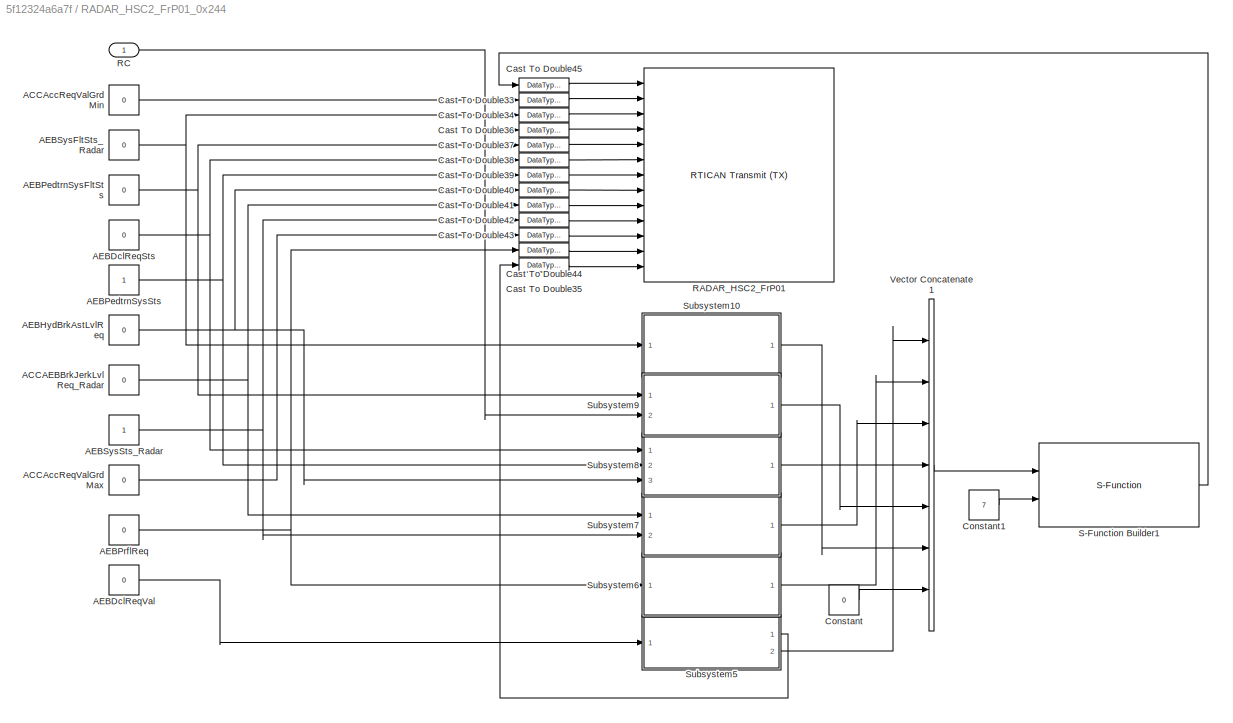
BLOCK [SubSystem] RADAR_HSC2_FrP01_0x244
  Ports = [1]
  RequestExecContextInheritance = off
BLOCK [Constant] RADAR_HSC2_FrP01_0x244/ACCAEBBrkJerkLvlReq_Radar
  OutDataTypeStr = single
  Value = 0
BLOCK [Constant] RADAR_HSC2_FrP01_0x244/ACCAccReqValGrdMax
  OutDataTypeStr = single
  Value = 0
BLOCK [Constant] RADAR_HSC2_FrP01_0x244/ACCAccReqValGrdMin
  OutDataTypeStr = single
  Value = 0
BLOCK [Constant] RADAR_HSC2_FrP01_0x244/AEBDclReqSts
  OutDataTypeStr = boolean
  Value = 0
BLOCK [Constant] RADAR_HSC2_FrP01_0x244/AEBDclReqVal
  OutDataTypeStr = single
  Value = 0
BLOCK [Constant] RADAR_HSC2_FrP01_0x244/AEBHydBrkAstLvlReq
  OutDataTypeStr = single
  Value = 0
BLOCK [Constant] RADAR_HSC2_FrP01_0x244/AEBPedtrnSysFltSts
  OutDataTypeStr = single
  Value = 0
BLOCK [Constant] RADAR_HSC2_FrP01_0x244/AEBPedtrnSysSts
  OutDataTypeStr = single
BLOCK [Constant] RADAR_HSC2_FrP01_0x244/AEBPrflReq
  OutDataTypeStr = boolean
  Value = 0
BLOCK [Constant] RADAR_HSC2_FrP01_0x244/AEBSysFltSts_Radar
  OutDataTypeStr = single
  Value = 0
BLOCK [Constant] RADAR_HSC2_FrP01_0x244/AEBSysSts_Radar
  OutDataTypeStr = single
BLOCK [DataTypeConversion] RADAR_HSC2_FrP01_0x244/Cast To Double33
  OutDataTypeStr = double
  RndMeth = Floor
  SaturateOnIntegerOverflow = off
BLOCK [DataTypeConversion] RADAR_HSC2_FrP01_0x244/Cast To Double34
  OutDataTypeStr = double
  RndMeth = Floor
  SaturateOnIntegerOverflow = off
BLOCK [DataTypeConversion] RADAR_HSC2_FrP01_0x244/Cast To Double35
  OutDataTypeStr = double
  RndMeth = Floor
  SaturateOnIntegerOverflow = off
BLOCK [DataTypeConversion] RADAR_HSC2_FrP01_0x244/Cast To Double36
  OutDataTypeStr = double
  RndMeth = Floor
  SaturateOnIntegerOverflow = off
BLOCK [DataTypeConversion] RADAR_HSC2_FrP01_0x244/Cast To Double37
  OutDataTypeStr = double
  RndMeth = Floor
  SaturateOnIntegerOverflow = off
BLOCK [DataTypeConversion] RADAR_HSC2_FrP01_0x244/Cast To Double38
  OutDataTypeStr = double
  RndMeth = Floor
  SaturateOnIntegerOverflow = off
BLOCK [DataTypeConversion] RADAR_HSC2_FrP01_0x244/Cast To Double39
  OutDataTypeStr = double
  RndMeth = Floor
  SaturateOnIntegerOverflow = off
BLOCK [DataTypeConversion] RADAR_HSC2_FrP01_0x244/Cast To Double40
  OutDataTypeStr = double
  RndMeth = Floor
  SaturateOnIntegerOverflow = off
BLOCK [DataTypeConversion] RADAR_HSC2_FrP01_0x244/Cast To Double41
  OutDataTypeStr = double
  RndMeth = Floor
  SaturateOnIntegerOverflow = off
BLOCK [DataTypeConversion] RADAR_HSC2_FrP01_0x244/Cast To Double42
  OutDataTypeStr = double
  RndMeth = Floor
  SaturateOnIntegerOverflow = off
BLOCK [DataTypeConversion] RADAR_HSC2_FrP01_0x244/Cast To Double43
  OutDataTypeStr = double
  RndMeth = Floor
  SaturateOnIntegerOverflow = off
BLOCK [DataTypeConversion] RADAR_HSC2_FrP01_0x244/Cast To Double44
  OutDataTypeStr = double
  RndMeth = Floor
  SaturateOnIntegerOverflow = off
BLOCK [DataTypeConversion] RADAR_HSC2_FrP01_0x244/Cast To Double45
  OutDataTypeStr = double
  RndMeth = Floor
  SaturateOnIntegerOverflow = off
BLOCK [Constant] RADAR_HSC2_FrP01_0x244/Constant
  OutDataTypeStr = uint8
  Value = 0
BLOCK [Constant] RADAR_HSC2_FrP01_0x244/Constant1
  OutDataTypeStr = uint8
  Value = 7
BLOCK [Reference] RADAR_HSC2_FrP01_0x244/RADAR_HSC2_FrP01  REF=rtican/RTICAN
Transmit (TX) 
  AttributesFormatString = Group Id: RTICAN1\n
  Ports = [13, 4]
  SourceBlock = rtican/RTICAN\nTransmit (TX)
  SourceProductName = dSPACE RTI CAN Blockset
  SourceType = RTI
BLOCK [Inport] RADAR_HSC2_FrP01_0x244/RC
  IconDisplay = Port number
BLOCK [S-Function] RADAR_HSC2_FrP01_0x244/S-Function Builder1
  CopyFcn = set_param(gcbh,'LinkStatus','none')
  EnableBusSupport = off
  FunctionName = CheckSum_0x242
  InitFcn = try, set_param(gcb,'FunctionName','CheckSum_0x242'), end
  OpenFcn = sfunctionwizard(gcbh)
  Ports = [2, 1]
  PreSaveFcn = try, set_param(gcb,'FunctionName','CheckSum_0x242'), end
  SFcnIsStateOwnerBlock = off
  SFunctionDeploymentMode = off
  SFunctionModules = CheckSum_0x242_wrapper
BLOCK [SubSystem] RADAR_HSC2_FrP01_0x244/Subsystem10
  Ports = [1, 1]
  RequestExecContextInheritance = off
BLOCK [Inport] RADAR_HSC2_FrP01_0x244/Subsystem10/AEBSysFltSts
  IconDisplay = Port number
BLOCK [Reference] RADAR_HSC2_FrP01_0x244/Subsystem10/Bitwise Operator3  REF=simulink/Logic and Bit
Operations/Bitwise
Operator
  Ports = [1, 1]
  SourceBlock = simulink/Logic and Bit\nOperations/Bitwise\nOperator
  SourceProductBaseCode = SL
  SourceProductName = Simulink
  SourceType = Bitwise Operator
BLOCK [DataTypeConversion] RADAR_HSC2_FrP01_0x244/Subsystem10/Data Type Conversion3
  OutDataTypeStr = uint8
  RndMeth = Floor
  SaturateOnIntegerOverflow = off
BLOCK [ArithShift] RADAR_HSC2_FrP01_0x244/Subsystem10/Shift Arithmetic2
  BitShiftDirection = Left
  BitShiftNumber = 5
  InputPortMap = u0
  Ports = [1, 1]
BLOCK [Outport] RADAR_HSC2_FrP01_0x244/Subsystem10/x244_byte5
  IconDisplay = Port number
BLOCK [SubSystem] RADAR_HSC2_FrP01_0x244/Subsystem5
  Ports = [1, 2]
  RequestExecContextInheritance = off
BLOCK [Outport] RADAR_HSC2_FrP01_0x244/Subsystem5/AEBDclReqVal
  IconDisplay = Port number
BLOCK [Inport] RADAR_HSC2_FrP01_0x244/Subsystem5/AEBDclReqVal0
  IconDisplay = Port number
BLOCK [Sum] RADAR_HSC2_FrP01_0x244/Subsystem5/Add
  InputSameDT = off
  OutDataTypeStr = Inherit: Inherit via internal rule
  Ports = [2, 1]
  SaturateOnIntegerOverflow = off
BLOCK [Sum] RADAR_HSC2_FrP01_0x244/Subsystem5/Add1
  InputSameDT = off
  Inputs = +-
  OutDataTypeStr = Inherit: Inherit via internal rule
  Ports = [2, 1]
  SaturateOnIntegerOverflow = off
BLOCK [Reference] RADAR_HSC2_FrP01_0x244/Subsystem5/Bitwise Operator  REF=simulink/Logic and Bit
Operations/Bitwise
Operator
  Ports = [1, 1]
  SourceBlock = simulink/Logic and Bit\nOperations/Bitwise\nOperator
  SourceProductBaseCode = SL
  SourceProductName = Simulink
  SourceType = Bitwise Operator
BLOCK [Constant] RADAR_HSC2_FrP01_0x244/Subsystem5/Constant
  Value = 12.7
BLOCK [Constant] RADAR_HSC2_FrP01_0x244/Subsystem5/Constant1
  Value = 0.1
BLOCK [Constant] RADAR_HSC2_FrP01_0x244/Subsystem5/Constant4
  Value = 0.1
BLOCK [Constant] RADAR_HSC2_FrP01_0x244/Subsystem5/Constant5
  Value = 12.7
BLOCK [DataTypeConversion] RADAR_HSC2_FrP01_0x244/Subsystem5/Data Type Conversion2
  OutDataTypeStr = uint8
  RndMeth = Floor
  SaturateOnIntegerOverflow = off
BLOCK [Product] RADAR_HSC2_FrP01_0x244/Subsystem5/Divide
  InputSameDT = off
  Inputs = */
  OutDataTypeStr = single
  Ports = [2, 1]
  RndMeth = Floor
  SaturateOnIntegerOverflow = off
BLOCK [Product] RADAR_HSC2_FrP01_0x244/Subsystem5/Multiply
  InputSameDT = off
  OutDataTypeStr = Inherit: Inherit via internal rule
  Ports = [2, 1]
  RndMeth = Floor
  SaturateOnIntegerOverflow = off
BLOCK [Outport] RADAR_HSC2_FrP01_0x244/Subsystem5/x244_byte0
  IconDisplay = Port number
  Port = 2
BLOCK [SubSystem] RADAR_HSC2_FrP01_0x244/Subsystem6
  Ports = [1, 1]
  RequestExecContextInheritance = off
BLOCK [Inport] RADAR_HSC2_FrP01_0x244/Subsystem6/AEBPrflReq
  IconDisplay = Port number
BLOCK [Sum] RADAR_HSC2_FrP01_0x244/Subsystem6/Add
  InputSameDT = off
  OutDataTypeStr = Inherit: Inherit via internal rule
  Ports = [2, 1]
  SaturateOnIntegerOverflow = off
BLOCK [Reference] RADAR_HSC2_FrP01_0x244/Subsystem6/Bitwise Operator1  REF=simulink/Logic and Bit
Operations/Bitwise
Operator
  Ports = [1, 1]
  SourceBlock = simulink/Logic and Bit\nOperations/Bitwise\nOperator
  SourceProductBaseCode = SL
  SourceProductName = Simulink
  SourceType = Bitwise Operator
BLOCK [Reference] RADAR_HSC2_FrP01_0x244/Subsystem6/Bitwise Operator2  REF=simulink/Logic and Bit
Operations/Bitwise
Operator
  Ports = [1, 1]
  SourceBlock = simulink/Logic and Bit\nOperations/Bitwise\nOperator
  SourceProductBaseCode = SL
  SourceProductName = Simulink
  SourceType = Bitwise Operator
BLOCK [Constant] RADAR_HSC2_FrP01_0x244/Subsystem6/Constant
  OutDataTypeStr = uint8
  Value = 0
BLOCK [DataTypeConversion] RADAR_HSC2_FrP01_0x244/Subsystem6/Data Type Conversion2
  OutDataTypeStr = uint8
  RndMeth = Floor
  SaturateOnIntegerOverflow = off
BLOCK [ArithShift] RADAR_HSC2_FrP01_0x244/Subsystem6/Shift Arithmetic1
  BitShiftDirection = Left
  BitShiftNumber = 7
  InputPortMap = u0
  Ports = [1, 1]
BLOCK [Outport] RADAR_HSC2_FrP01_0x244/Subsystem6/x244_byte1
  IconDisplay = Port number
BLOCK [SubSystem] RADAR_HSC2_FrP01_0x244/Subsystem7
  Ports = [2, 1]
  RequestExecContextInheritance = off
BLOCK [Inport] RADAR_HSC2_FrP01_0x244/Subsystem7/ACCAEBBrkJerkLvlReq
  IconDisplay = Port number
BLOCK [Inport] RADAR_HSC2_FrP01_0x244/Subsystem7/AEBSysSts
  IconDisplay = Port number
  Port = 2
BLOCK [Sum] RADAR_HSC2_FrP01_0x244/Subsystem7/Add
  InputSameDT = off
  OutDataTypeStr = Inherit: Inherit via internal rule
  Ports = [2, 1]
  SaturateOnIntegerOverflow = off
BLOCK [Reference] RADAR_HSC2_FrP01_0x244/Subsystem7/Bitwise Operator1  REF=simulink/Logic and Bit
Operations/Bitwise
Operator
  Ports = [1, 1]
  SourceBlock = simulink/Logic and Bit\nOperations/Bitwise\nOperator
  SourceProductBaseCode = SL
  SourceProductName = Simulink
  SourceType = Bitwise Operator
BLOCK [Reference] RADAR_HSC2_FrP01_0x244/Subsystem7/Bitwise Operator2  REF=simulink/Logic and Bit
Operations/Bitwise
Operator
  Ports = [1, 1]
  SourceBlock = simulink/Logic and Bit\nOperations/Bitwise\nOperator
  SourceProductBaseCode = SL
  SourceProductName = Simulink
  SourceType = Bitwise Operator
BLOCK [DataTypeConversion] RADAR_HSC2_FrP01_0x244/Subsystem7/Data Type Conversion1
  OutDataTypeStr = uint8
  RndMeth = Floor
  SaturateOnIntegerOverflow = off
BLOCK [DataTypeConversion] RADAR_HSC2_FrP01_0x244/Subsystem7/Data Type Conversion2
  OutDataTypeStr = uint8
  RndMeth = Floor
  SaturateOnIntegerOverflow = off
BLOCK [ArithShift] RADAR_HSC2_FrP01_0x244/Subsystem7/Shift Arithmetic1
  BitShiftDirection = Left
  BitShiftNumber = 2
  InputPortMap = u0
  Ports = [1, 1]
BLOCK [ArithShift] RADAR_HSC2_FrP01_0x244/Subsystem7/Shift Arithmetic2
  BitShiftDirection = Left
  BitShiftNumber = 5
  InputPortMap = u0
  Ports = [1, 1]
BLOCK [Outport] RADAR_HSC2_FrP01_0x244/Subsystem7/x244_byte2
  IconDisplay = Port number
BLOCK [SubSystem] RADAR_HSC2_FrP01_0x244/Subsystem8
  Ports = [3, 1]
  RequestExecContextInheritance = off
BLOCK [Inport] RADAR_HSC2_FrP01_0x244/Subsystem8/AEBDclReqSts
  IconDisplay = Port number
BLOCK [Inport] RADAR_HSC2_FrP01_0x244/Subsystem8/AEBHydBrkAstLvlReq
  IconDisplay = Port number
  Port = 3
BLOCK [Inport] RADAR_HSC2_FrP01_0x244/Subsystem8/AEBPedtrnSysSts
  IconDisplay = Port number
  Port = 2
BLOCK [Sum] RADAR_HSC2_FrP01_0x244/Subsystem8/Add
  InputSameDT = off
  Inputs = +++
  OutDataTypeStr = Inherit: Inherit via internal rule
  Ports = [3, 1]
  SaturateOnIntegerOverflow = off
BLOCK [Reference] RADAR_HSC2_FrP01_0x244/Subsystem8/Bitwise Operator1  REF=simulink/Logic and Bit
Operations/Bitwise
Operator
  Ports = [1, 1]
  SourceBlock = simulink/Logic and Bit\nOperations/Bitwise\nOperator
  SourceProductBaseCode = SL
  SourceProductName = Simulink
  SourceType = Bitwise Operator
BLOCK [Reference] RADAR_HSC2_FrP01_0x244/Subsystem8/Bitwise Operator2  REF=simulink/Logic and Bit
Operations/Bitwise
Operator
  Ports = [1, 1]
  SourceBlock = simulink/Logic and Bit\nOperations/Bitwise\nOperator
  SourceProductBaseCode = SL
  SourceProductName = Simulink
  SourceType = Bitwise Operator
BLOCK [Reference] RADAR_HSC2_FrP01_0x244/Subsystem8/Bitwise Operator3  REF=simulink/Logic and Bit
Operations/Bitwise
Operator
  Ports = [1, 1]
  SourceBlock = simulink/Logic and Bit\nOperations/Bitwise\nOperator
  SourceProductBaseCode = SL
  SourceProductName = Simulink
  SourceType = Bitwise Operator
BLOCK [DataTypeConversion] RADAR_HSC2_FrP01_0x244/Subsystem8/Data Type Conversion1
  OutDataTypeStr = uint8
  RndMeth = Floor
  SaturateOnIntegerOverflow = off
BLOCK [DataTypeConversion] RADAR_HSC2_FrP01_0x244/Subsystem8/Data Type Conversion2
  OutDataTypeStr = uint8
  RndMeth = Floor
  SaturateOnIntegerOverflow = off
BLOCK [DataTypeConversion] RADAR_HSC2_FrP01_0x244/Subsystem8/Data Type Conversion3
  OutDataTypeStr = uint8
  RndMeth = Floor
  SaturateOnIntegerOverflow = off
BLOCK [ArithShift] RADAR_HSC2_FrP01_0x244/Subsystem8/Shift Arithmetic1
  BitShiftDirection = Left
  BitShiftNumber = 2
  InputPortMap = u0
  Ports = [1, 1]
BLOCK [ArithShift] RADAR_HSC2_FrP01_0x244/Subsystem8/Shift Arithmetic2
  BitShiftDirection = Left
  BitShiftNumber = 5
  InputPortMap = u0
  Ports = [1, 1]
BLOCK [Outport] RADAR_HSC2_FrP01_0x244/Subsystem8/x244_byte3
  IconDisplay = Port number
BLOCK [SubSystem] RADAR_HSC2_FrP01_0x244/Subsystem9
  Ports = [2, 1]
  RequestExecContextInheritance = off
BLOCK [Inport] RADAR_HSC2_FrP01_0x244/Subsystem9/AEBAlvRlngCtr
  IconDisplay = Port number
  Port = 2
BLOCK [Inport] RADAR_HSC2_FrP01_0x244/Subsystem9/AEBPedtrnSysFltSts
  IconDisplay = Port number
BLOCK [Sum] RADAR_HSC2_FrP01_0x244/Subsystem9/Add
  InputSameDT = off
  OutDataTypeStr = Inherit: Inherit via internal rule
  Ports = [2, 1]
  SaturateOnIntegerOverflow = off
BLOCK [Reference] RADAR_HSC2_FrP01_0x244/Subsystem9/Bitwise Operator1  REF=simulink/Logic and Bit
Operations/Bitwise
Operator
  Ports = [1, 1]
  SourceBlock = simulink/Logic and Bit\nOperations/Bitwise\nOperator
  SourceProductBaseCode = SL
  SourceProductName = Simulink
  SourceType = Bitwise Operator
BLOCK [Reference] RADAR_HSC2_FrP01_0x244/Subsystem9/Bitwise Operator3  REF=simulink/Logic and Bit
Operations/Bitwise
Operator
  Ports = [1, 1]
  SourceBlock = simulink/Logic and Bit\nOperations/Bitwise\nOperator
  SourceProductBaseCode = SL
  SourceProductName = Simulink
  SourceType = Bitwise Operator
BLOCK [DataTypeConversion] RADAR_HSC2_FrP01_0x244/Subsystem9/Data Type Conversion1
  OutDataTypeStr = uint8
  RndMeth = Floor
  SaturateOnIntegerOverflow = off
BLOCK [DataTypeConversion] RADAR_HSC2_FrP01_0x244/Subsystem9/Data Type Conversion3
  OutDataTypeStr = uint8
  RndMeth = Floor
  SaturateOnIntegerOverflow = off
BLOCK [ArithShift] RADAR_HSC2_FrP01_0x244/Subsystem9/Shift Arithmetic2
  BitShiftDirection = Left
  BitShiftNumber = 4
  InputPortMap = u0
  Ports = [1, 1]
BLOCK [Outport] RADAR_HSC2_FrP01_0x244/Subsystem9/x244_byte4
  IconDisplay = Port number
BLOCK [Concatenate] RADAR_HSC2_FrP01_0x244/Vector Concatenate1
  NumInputs = 7
  Ports = [7, 1]
BLOCK [SubSystem] RADAR_HSC2_FrP02_0x246
  Ports = [1]
  RequestExecContextInheritance = off
BLOCK [BusSelector] RADAR_HSC2_FrP02_0x246/Bus Selector2
  OutputAsBus = off
  OutputSignals = FCWrnngSts_RadarHSC2,FCWDspCmd_RadarHSC2,AEBDspCmd_RadarHSC2,FCWSysFltSts_RadarHSC2,FCWSnstvtLvl_RadarHSC2,AEBPedtrnDspCmdHSC2,RdrCalPrgsReqHSC2,ACCGoNotfr_RadarHSC2,ACCSysFltSts_RadarHSC2,ACCDrvrTkovReqHSC2,ACCDetObjDistLvl_RadarHSC2,ACCDrvrSeldTrgtDistLvl_RadarHSC2,ACCSysCanclReq_RadarHSC2,AEBMsgReqHSC2,ACCMsgReqHSC2,ACCDrvrSelTrgtSpd_RadarHSC2,ACCObjDet_RadarHSC2
  Ports = [1, 17]
BLOCK [Inport] RADAR_HSC2_FrP02_0x246/COM_x246_st
  IconDisplay = Port number
BLOCK [DataTypeConversion] RADAR_HSC2_FrP02_0x246/Cast To Double13
  OutDataTypeStr = double
  RndMeth = Floor
  SaturateOnIntegerOverflow = off
BLOCK [DataTypeConversion] RADAR_HSC2_FrP02_0x246/Cast To Double14
  OutDataTypeStr = double
  RndMeth = Floor
  SaturateOnIntegerOverflow = off
BLOCK [DataTypeConversion] RADAR_HSC2_FrP02_0x246/Cast To Double15
  OutDataTypeStr = double
  RndMeth = Floor
  SaturateOnIntegerOverflow = off
BLOCK [DataTypeConversion] RADAR_HSC2_FrP02_0x246/Cast To Double16
  OutDataTypeStr = double
  RndMeth = Floor
  SaturateOnIntegerOverflow = off
BLOCK [DataTypeConversion] RADAR_HSC2_FrP02_0x246/Cast To Double17
  OutDataTypeStr = double
  RndMeth = Floor
  SaturateOnIntegerOverflow = off
BLOCK [DataTypeConversion] RADAR_HSC2_FrP02_0x246/Cast To Double18
  OutDataTypeStr = double
  RndMeth = Floor
  SaturateOnIntegerOverflow = off
BLOCK [DataTypeConversion] RADAR_HSC2_FrP02_0x246/Cast To Double19
  OutDataTypeStr = double
  RndMeth = Floor
  SaturateOnIntegerOverflow = off
BLOCK [DataTypeConversion] RADAR_HSC2_FrP02_0x246/Cast To Double20
  OutDataTypeStr = double
  RndMeth = Floor
  SaturateOnIntegerOverflow = off
BLOCK [DataTypeConversion] RADAR_HSC2_FrP02_0x246/Cast To Double21
  OutDataTypeStr = double
  RndMeth = Floor
  SaturateOnIntegerOverflow = off
BLOCK [DataTypeConversion] RADAR_HSC2_FrP02_0x246/Cast To Double22
  OutDataTypeStr = double
  RndMeth = Floor
  SaturateOnIntegerOverflow = off
BLOCK [DataTypeConversion] RADAR_HSC2_FrP02_0x246/Cast To Double23
  OutDataTypeStr = double
  RndMeth = Floor
  SaturateOnIntegerOverflow = off
BLOCK [DataTypeConversion] RADAR_HSC2_FrP02_0x246/Cast To Double24
  OutDataTypeStr = double
  RndMeth = Floor
  SaturateOnIntegerOverflow = off
BLOCK [DataTypeConversion] RADAR_HSC2_FrP02_0x246/Cast To Double25
  OutDataTypeStr = double
  RndMeth = Floor
  SaturateOnIntegerOverflow = off
BLOCK [DataTypeConversion] RADAR_HSC2_FrP02_0x246/Cast To Double26
  OutDataTypeStr = double
  RndMeth = Floor
  SaturateOnIntegerOverflow = off
BLOCK [DataTypeConversion] RADAR_HSC2_FrP02_0x246/Cast To Double27
  OutDataTypeStr = double
  RndMeth = Floor
  SaturateOnIntegerOverflow = off
BLOCK [DataTypeConversion] RADAR_HSC2_FrP02_0x246/Cast To Double28
  OutDataTypeStr = double
  RndMeth = Floor
  SaturateOnIntegerOverflow = off
BLOCK [DataTypeConversion] RADAR_HSC2_FrP02_0x246/Cast To Double29
  OutDataTypeStr = double
  RndMeth = Floor
  SaturateOnIntegerOverflow = off
BLOCK [Reference] RADAR_HSC2_FrP02_0x246/RADAR_HSC2_FrP02  REF=rtican/RTICAN
Transmit (TX) 
  AttributesFormatString = Group Id: RTICAN1\n
  Ports = [17, 4]
  SourceBlock = rtican/RTICAN\nTransmit (TX)
  SourceProductName = dSPACE RTI CAN Blockset
  SourceType = RTI
BLOCK [SubSystem] RollingCounter
  Ports = [0, 1]
  RequestExecContextInheritance = off
BLOCK [Sum] RollingCounter/Add2
  InputSameDT = off
  OutDataTypeStr = Inherit: Inherit via internal rule
  Ports = [2, 1]
  SaturateOnIntegerOverflow = off
BLOCK [Constant] RollingCounter/Constant5
BLOCK [Constant] RollingCounter/Constant6
  Value = -1
BLOCK [Delay] RollingCounter/Delay
  DelayLength = 1
  InputPortMap = u0
  Ports = [1, 1]
BLOCK [Outport] RollingCounter/RC
  IconDisplay = Port number
BLOCK [Switch] RollingCounter/Switch
  Criteria = u2 > Threshold
  InputSameDT = off
  SaturateOnIntegerOverflow = off
  Threshold = 14
BLOCK [SubSystem] TX_IPC
  Ports = [4]
  RequestExecContextInheritance = off
BLOCK [Inport] TX_IPC/0x255
  IconDisplay = Port number
BLOCK [Reference] TX_IPC/ACC_Output_01  REF=rtican/RTICAN
Transmit (TX) 
  AttributesFormatString = Group Id: RTICAN4\n
  Ports = [9, 4]
  SourceBlock = rtican/RTICAN\nTransmit (TX)
  SourceProductName = dSPACE RTI CAN Blockset
  SourceType = RTI
BLOCK [Reference] TX_IPC/BCM_Info_1  REF=rtican/RTICAN
Transmit (TX) 
  AttributesFormatString = Group Id: RTICAN4\n
  Ports = [2, 4]
  SourceBlock = rtican/RTICAN\nTransmit (TX)
  SourceProductName = dSPACE RTI CAN Blockset
  SourceType = RTI
BLOCK [Reference] TX_IPC/BCM_Info_2  REF=rtican/RTICAN
Transmit (TX) 
  AttributesFormatString = Group Id: RTICAN4\n
  Ports = [20, 4]
  SourceBlock = rtican/RTICAN\nTransmit (TX)
  SourceProductName = dSPACE RTI CAN Blockset
  SourceType = RTI
BLOCK [BusSelector] TX_IPC/Bus Selector
  OutputAsBus = off
  OutputSignals = Vehicle_Front_dy,Vehicle_Front_dx,Vehicle_Front_Type,ACC_Tip,ACC_Status,ACC_Passive_Rea,ACC_Error,TimeGapRes,vSetDis
  Ports = [1, 9]
BLOCK [BusSelector] TX_IPC/Bus Selector1
  OutputAsBus = off
  OutputSignals = ClstrDspdVehSpdHSC2,FrtWiperSwStsHSC2
  Ports = [1, 2]
BLOCK [BusSelector] TX_IPC/Bus Selector2
  OutputAsBus = off
  OutputSignals = Msg0x1E5,Msg0x21C,Msg0x46A,Msg0x194
  Ports = [1, 4]
BLOCK [BusSelector] TX_IPC/Bus Selector3
  OutputAsBus = off
  OutputSignals = VehSideLghtStsHSC2,RDircnIndLghtFHSC2,KeyDetIndxHSC2,FrtWiperParkPosAHSC2,FrtWshrPumpAHSC2,RLDoorOpenStsHSC2,FrtPsngDoorOpenStsHSC2,DspMeasSysHSC2,BntOpenStsHSC2,RrFogLghtOnHSC2,RDircnIOHSC2,LDircnIndLghtFHSC2,LDircnIOHSC2,DipdBeamLghtOnHSC2,FrtFogLghtOnHSC2,MainBeamLghtOnHSC2,DrvrDoorOpenStsHSC2,DircnIndLampSwStsHSC2,RRDoorOpenStsHSC2,LdspcOpenStsHSC2
  Ports = [1, 20]
BLOCK [BusSelector] TX_IPC/Bus Selector4
  OutputAsBus = off
  OutputSignals = LKS_Status,LKS_Passive_Rea,LKS_Error,Handsoff_Warning,LC_Request,LC_Fail_Tip,LC_Dis_dy,LC_Tip,LC_Reason,LC_Dis_dx,LC_Proposal,LC_pro_reason,LC_Direction
  Ports = [1, 13]
BLOCK [BusSelector] TX_IPC/Bus Selector5
  OutputAsBus = off
  OutputSignals = StrgWhlAngSnsrChksmHSC2,StrgWhlAngExtdPVHSC2,StrgWhlAngGrdHSC2,StrgWhlAngAlvRCHSC2,StrgWhlAngHSC2,StrgWhlAngSnsrFltHSC2,StrgWhlAngSnsrMultCapbHSC2,StrgWhlAngSnsrInidHSC2,StrgWhlAngSnsrCalStsHSC2,StrgWhlAngVHSC2
  Ports = [1, 10]
BLOCK [BusSelector] TX_IPC/Bus Selector6
  OutputAsBus = off
  OutputSignals = TrEstdGearHSC2,TrEstdGearVHSC2
  Ports = [1, 2]
BLOCK [BusSelector] TX_IPC/Bus Selector7
  OutputAsBus = off
  OutputSignals = x24C,x24E
  Ports = [1, 2]
BLOCK [BusSelector] TX_IPC/Bus Selector8
  OutputAsBus = off
  OutputSignals = WhlGndVelLDrvn_Radar,WhlGndVelRDrvn_Radar,LDrvnWhlRotlDircn,RDrvnWhlRotlDircn,WhlGndVelLDrvnV_Radar,WhlGndVelRDrvnV_Radar
  Ports = [1, 6]
BLOCK [BusSelector] TX_IPC/Bus Selector9
  OutputAsBus = off
  OutputSignals = WhlGndVelLNonDrvn_Radar,WhlGndVelRNonDrvn_Radar,WhlGndVelLNonDrvnV_Radar,WhlGndVelRNonDrvnV_Radar,LNonDrvnWhlRotlDircn_Radar,RNonDrvnWhlRotlDircn_Radar
  Ports = [1, 6]
BLOCK [Inport] TX_IPC/COM_VehBus_st
  IconDisplay = Port number
  Port = 4
BLOCK [Reference] TX_IPC/LKS_TJA_Info_Output_01  REF=rtican/RTICAN
Transmit (TX) 
  AttributesFormatString = Group Id: RTICAN4\n
  Ports = [6, 4]
  SourceBlock = rtican/RTICAN\nTransmit (TX)
  SourceProductName = dSPACE RTI CAN Blockset
  SourceType = RTI
BLOCK [Reference] TX_IPC/LKS_TJA_Info_Output_02  REF=rtican/RTICAN
Transmit (TX) 
  AttributesFormatString = Group Id: RTICAN4\n
  Ports = [10, 4]
  SourceBlock = rtican/RTICAN\nTransmit (TX)
  SourceProductName = dSPACE RTI CAN Blockset
  SourceType = RTI
BLOCK [Inport] TX_IPC/Lat_HMI
  IconDisplay = Port number
  OutDataTypeStr = Bus: HMI_Lateral_t
  Port = 3
BLOCK [Reference] TX_IPC/Steer_Info  REF=rtican/RTICAN
Transmit (TX) 
  AttributesFormatString = Group Id: RTICAN4\n
  Ports = [10, 4]
  SourceBlock = rtican/RTICAN\nTransmit (TX)
  SourceProductName = dSPACE RTI CAN Blockset
  SourceType = RTI
BLOCK [Inport] TX_IPC/VehSigToEQ4
  IconDisplay = Port number
  Port = 2
BLOCK [Reference] TX_IPC/Veh_Gear  REF=rtican/RTICAN
Transmit (TX) 
  AttributesFormatString = Group Id: RTICAN4\n
  Ports = [2, 4]
  SourceBlock = rtican/RTICAN\nTransmit (TX)
  SourceProductName = dSPACE RTI CAN Blockset
  SourceType = RTI
BLOCK [Reference] TX_IPC/Veh_WhlSpd_00  REF=rtican/RTICAN
Transmit (TX) 
  AttributesFormatString = Group Id: RTICAN4\n
  Ports = [8, 4]
  SourceBlock = rtican/RTICAN\nTransmit (TX)
  SourceProductName = dSPACE RTI CAN Blockset
  SourceType = RTI
BLOCK [Reference] TX_IPC/Veh_WhlSpd_01  REF=rtican/RTICAN
Transmit (TX) 
  AttributesFormatString = Group Id: RTICAN4\n
  Ports = [8, 4]
  SourceBlock = rtican/RTICAN\nTransmit (TX)
  SourceProductName = dSPACE RTI CAN Blockset
  SourceType = RTI
BLOCK [Inport] VLC_LgtCmd_st
  BusOutputAsStruct = on
  IconDisplay = Port number
  OutDataTypeStr = Bus: VLC_LGTCMD_ST
LINE ACC_LgtCtrl_st:1 -> Adapter_Tx:2
LINE ACC_Output_0x255/Bus Selector:1 -> ACC_Output_0x255/Cast To Double13:1
LINE ACC_Output_0x255/Bus Selector:2 -> ACC_Output_0x255/Cast To Double1:1
LINE ACC_Output_0x255/Bus Selector:3 -> ACC_Output_0x255/Cast To Double2:1
LINE ACC_Output_0x255/Bus Selector:4 -> ACC_Output_0x255/Cast To Double3:1
LINE ACC_Output_0x255/Bus Selector:5 -> ACC_Output_0x255/Cast To Double4:1
LINE ACC_Output_0x255/Bus Selector:6 -> ACC_Output_0x255/Cast To Double5:1
LINE ACC_Output_0x255/Bus Selector:7 -> ACC_Output_0x255/Cast To Double6:1
LINE ACC_Output_0x255/Bus Selector:8 -> ACC_Output_0x255/Cast To Double7:1
LINE ACC_Output_0x255/Bus Selector:9 -> ACC_Output_0x255/Cast To Double8:1
LINE ACC_Output_0x255/Cast To Double13:1 -> ACC_Output_0x255/ACC_Output_01:1
LINE ACC_Output_0x255/Cast To Double1:1 -> ACC_Output_0x255/ACC_Output_01:2
LINE ACC_Output_0x255/Cast To Double2:1 -> ACC_Output_0x255/ACC_Output_01:3
LINE ACC_Output_0x255/Cast To Double3:1 -> ACC_Output_0x255/ACC_Output_01:4
LINE ACC_Output_0x255/Cast To Double4:1 -> ACC_Output_0x255/ACC_Output_01:5
LINE ACC_Output_0x255/Cast To Double5:1 -> ACC_Output_0x255/ACC_Output_01:6
LINE ACC_Output_0x255/Cast To Double6:1 -> ACC_Output_0x255/ACC_Output_01:7
LINE ACC_Output_0x255/Cast To Double7:1 -> ACC_Output_0x255/ACC_Output_01:8
LINE ACC_Output_0x255/Cast To Double8:1 -> ACC_Output_0x255/ACC_Output_01:9
LINE ACC_Output_0x255/In1:1 -> ACC_Output_0x255/Bus Selector:1
LINE ATS_Po_st:1 -> Adapter_Tx:3
LINE Adapter_Tx/ACC_LgtCtrl_st:1 -> Adapter_Tx/Bus Selector1:1
LINE Adapter_Tx/ATS_Po_st:1 -> Adapter_Tx/Bus Selector:1
NET Adapter_Tx/Bus Selector1:1 -> Adapter_Tx/calc_0x246:3, Adapter_Tx/calc_0x255:1
LINE Adapter_Tx/Bus Selector4:1 -> Adapter_Tx/calc_0x165:1
LINE Adapter_Tx/Bus Selector4:2 -> Adapter_Tx/calc_0x165:2
NET Adapter_Tx/Bus Selector4:3 -> Adapter_Tx/calc_0x242:1, Adapter_Tx/calc_0x255:2
LINE Adapter_Tx/Bus Selector4:4 -> Adapter_Tx/calc_0x242:2
LINE Adapter_Tx/Bus Selector4:5 -> Adapter_Tx/calc_0x242:3
LINE Adapter_Tx/Bus Selector4:6 -> Adapter_Tx/calc_0x242:4
LINE Adapter_Tx/Bus Selector4:7 -> Adapter_Tx/calc_0x242:5
LINE Adapter_Tx/Bus Selector:1 -> Adapter_Tx/calc_0x246:1
NET Adapter_Tx/Bus Selector:2 -> Adapter_Tx/calc_0x246:2, Adapter_Tx/calc_0x255:3
LINE Adapter_Tx/Bus Selector:3 -> Adapter_Tx/calc_0x255:4
LINE Adapter_Tx/Bus Selector:4 -> Adapter_Tx/calc_0x255:5
LINE Adapter_Tx/VLC_LgtCmd_st:1 -> Adapter_Tx/Bus Selector4:1
LINE Adapter_Tx/calc_0x165/<EngineTorqReq>:1 -> Adapter_Tx/calc_0x165/Switch1:1
LINE Adapter_Tx/calc_0x165/<EngineTorqReqSt>:1 -> Adapter_Tx/calc_0x165/Switch:1
LINE Adapter_Tx/calc_0x165/Bus Creator3:1 -> Adapter_Tx/calc_0x165/COM_x165_st:1
LINE Adapter_Tx/calc_0x165/EngineTorqReq:1 -> Adapter_Tx/calc_0x165/Switch1:3
LINE Adapter_Tx/calc_0x165/EngineTorqReqSt:1 -> Adapter_Tx/calc_0x165/Switch:3
NET Adapter_Tx/calc_0x165/P_x165_On:1 -> Adapter_Tx/calc_0x165/Switch1:2, Adapter_Tx/calc_0x165/Switch:2
LINE Adapter_Tx/calc_0x165/Switch1:1 -> Adapter_Tx/calc_0x165/Bus Creator3:2
LINE Adapter_Tx/calc_0x165/Switch:1 -> Adapter_Tx/calc_0x165/Bus Creator3:1
LINE Adapter_Tx/calc_0x165:1 -> Adapter_Tx/x165:1
LINE Adapter_Tx/calc_0x242/1-D Lookup Table:1 -> Adapter_Tx/calc_0x242/Switch2:1
LINE Adapter_Tx/calc_0x242/<ACCState>:1 -> Adapter_Tx/calc_0x242/1-D Lookup Table:1
LINE Adapter_Tx/calc_0x242/<CDDAxtar>:1 -> Adapter_Tx/calc_0x242/Switch4:1
LINE Adapter_Tx/calc_0x242/<CDDDriveoffReq>:1 -> Adapter_Tx/calc_0x242/Switch5:1
LINE Adapter_Tx/calc_0x242/<CDDEnable>:1 -> Adapter_Tx/calc_0x242/Switch3:1
LINE Adapter_Tx/calc_0x242/<CDDStandstillReq>:1 -> Adapter_Tx/calc_0x242/Switch6:1
LINE Adapter_Tx/calc_0x242/ACCAccReqValTolMax:1 -> Adapter_Tx/calc_0x242/Bus Creator1:5
LINE Adapter_Tx/calc_0x242/ACCAccReqValTolMin:1 -> Adapter_Tx/calc_0x242/Bus Creator1:1
LINE Adapter_Tx/calc_0x242/ACCMinBrkReqSts:1 -> Adapter_Tx/calc_0x242/Bus Creator1:11
LINE Adapter_Tx/calc_0x242/ACCReqBrkPrfrd:1 -> Adapter_Tx/calc_0x242/Bus Creator1:10
LINE Adapter_Tx/calc_0x242/ACCState:1 -> Adapter_Tx/calc_0x242/Switch2:3
LINE Adapter_Tx/calc_0x242/ACCSysFltSts:1 -> Adapter_Tx/calc_0x242/Bus Creator1:3
LINE Adapter_Tx/calc_0x242/Bus Creator1:1 -> Adapter_Tx/calc_0x242/COM_x242_st:1
LINE Adapter_Tx/calc_0x242/CDDAxtar:1 -> Adapter_Tx/calc_0x242/Switch4:3
LINE Adapter_Tx/calc_0x242/CDDDriveoffReq:1 -> Adapter_Tx/calc_0x242/Switch5:3
LINE Adapter_Tx/calc_0x242/CDDEnable:1 -> Adapter_Tx/calc_0x242/Switch3:3
LINE Adapter_Tx/calc_0x242/CDDStandstillReq:1 -> Adapter_Tx/calc_0x242/Switch6:3
LINE Adapter_Tx/calc_0x242/ChACCShtdwnMd:1 -> Adapter_Tx/calc_0x242/Bus Creator1:9
NET Adapter_Tx/calc_0x242/P_x242_On:1 -> Adapter_Tx/calc_0x242/Switch2:2, Adapter_Tx/calc_0x242/Switch3:2, Adapter_Tx/calc_0x242/Switch4:2, Adapter_Tx/calc_0x242/Switch5:2, Adapter_Tx/calc_0x242/Switch6:2
LINE Adapter_Tx/calc_0x242/Switch2:1 -> Adapter_Tx/calc_0x242/Bus Creator1:8
LINE Adapter_Tx/calc_0x242/Switch3:1 -> Adapter_Tx/calc_0x242/Bus Creator1:7
LINE Adapter_Tx/calc_0x242/Switch4:1 -> Adapter_Tx/calc_0x242/Bus Creator1:6
LINE Adapter_Tx/calc_0x242/Switch5:1 -> Adapter_Tx/calc_0x242/Bus Creator1:4
LINE Adapter_Tx/calc_0x242/Switch6:1 -> Adapter_Tx/calc_0x242/Bus Creator1:2
LINE Adapter_Tx/calc_0x242:1 -> Adapter_Tx/x242:1
LINE Adapter_Tx/calc_0x246/1-D Lookup Table1:1 -> Adapter_Tx/calc_0x246/Bus Creator2:17
LINE Adapter_Tx/calc_0x246/<ACCvSet>:1 -> Adapter_Tx/calc_0x246/SetSpdConvert:1
LINE Adapter_Tx/calc_0x246/<Valid>:1 -> Adapter_Tx/calc_0x246/Bus Creator2:11
LINE Adapter_Tx/calc_0x246/<dx>:1 -> Adapter_Tx/calc_0x246/1-D Lookup Table1:1
LINE Adapter_Tx/calc_0x246/ACCDetObjDistLvl:1 -> Adapter_Tx/calc_0x246/Bus Creator:17
LINE Adapter_Tx/calc_0x246/ACCDrvrSelTrgtSpd:1 -> Adapter_Tx/calc_0x246/Bus Creator:15
NET Adapter_Tx/calc_0x246/ACCDrvrSeldTrgtDistLvl:1 -> Adapter_Tx/calc_0x246/Bus Creator2:16, Adapter_Tx/calc_0x246/Bus Creator:16
NET Adapter_Tx/calc_0x246/ACCDrvrTkovReq:1 -> Adapter_Tx/calc_0x246/Bus Creator2:14, Adapter_Tx/calc_0x246/Bus Creator:14
NET Adapter_Tx/calc_0x246/ACCGoNotfr:1 -> Adapter_Tx/calc_0x246/Bus Creator2:13, Adapter_Tx/calc_0x246/Bus Creator:13
NET Adapter_Tx/calc_0x246/ACCMsgReq:1 -> Adapter_Tx/calc_0x246/Bus Creator2:12, Adapter_Tx/calc_0x246/Bus Creator:12
LINE Adapter_Tx/calc_0x246/ACCObjDet:1 -> Adapter_Tx/calc_0x246/Bus Creator:11
NET Adapter_Tx/calc_0x246/ACCSysCanclReq:1 -> Adapter_Tx/calc_0x246/Bus Creator2:10, Adapter_Tx/calc_0x246/Bus Creator:10
NET Adapter_Tx/calc_0x246/ACCSysFltSts_246:1 -> Adapter_Tx/calc_0x246/Bus Creator2:9, Adapter_Tx/calc_0x246/Bus Creator:9
NET Adapter_Tx/calc_0x246/AEBDspCmd:1 -> Adapter_Tx/calc_0x246/Bus Creator2:8, Adapter_Tx/calc_0x246/Bus Creator:8
NET Adapter_Tx/calc_0x246/AEBMsgReq:1 -> Adapter_Tx/calc_0x246/Bus Creator2:7, Adapter_Tx/calc_0x246/Bus Creator:7
NET Adapter_Tx/calc_0x246/AEBPedtrnDspCmd:1 -> Adapter_Tx/calc_0x246/Bus Creator2:6, Adapter_Tx/calc_0x246/Bus Creator:6
LINE Adapter_Tx/calc_0x246/Bus Creator2:1 -> Adapter_Tx/calc_0x246/Switch7:1
LINE Adapter_Tx/calc_0x246/Bus Creator:1 -> Adapter_Tx/calc_0x246/Switch7:3
NET Adapter_Tx/calc_0x246/FCWDspCmd:1 -> Adapter_Tx/calc_0x246/Bus Creator2:5, Adapter_Tx/calc_0x246/Bus Creator:5
NET Adapter_Tx/calc_0x246/FCWSnstvtLvl:1 -> Adapter_Tx/calc_0x246/Bus Creator2:3, Adapter_Tx/calc_0x246/Bus Creator:3
NET Adapter_Tx/calc_0x246/FCWSysFltSts:1 -> Adapter_Tx/calc_0x246/Bus Creator2:2, Adapter_Tx/calc_0x246/Bus Creator:2
NET Adapter_Tx/calc_0x246/FCWrnngSts:1 -> Adapter_Tx/calc_0x246/Bus Creator2:4, Adapter_Tx/calc_0x246/Bus Creator:4
LINE Adapter_Tx/calc_0x246/P_x246_On:1 -> Adapter_Tx/calc_0x246/Switch7:2
NET Adapter_Tx/calc_0x246/RdrCalPrgsReq:1 -> Adapter_Tx/calc_0x246/Bus Creator2:1, Adapter_Tx/calc_0x246/Bus Creator:1
LINE Adapter_Tx/calc_0x246/SetSpdConvert:1 -> Adapter_Tx/calc_0x246/Bus Creator2:15
LINE Adapter_Tx/calc_0x246/Switch7:1 -> Adapter_Tx/calc_0x246/Out1:1
LINE Adapter_Tx/calc_0x246:1 -> Adapter_Tx/x246:1
LINE Adapter_Tx/calc_0x255/ACCState:1 -> Adapter_Tx/calc_0x255/Bus Creator:5
LINE Adapter_Tx/calc_0x255/ACC_Error:1 -> Adapter_Tx/calc_0x255/Bus Creator:7
LINE Adapter_Tx/calc_0x255/ACC_Passive_Res:1 -> Adapter_Tx/calc_0x255/Bus Creator:6
LINE Adapter_Tx/calc_0x255/ACC_Tip:1 -> Adapter_Tx/calc_0x255/Bus Creator:4
LINE Adapter_Tx/calc_0x255/ACCvSet:1 -> Adapter_Tx/calc_0x255/Bus Creator:9
LINE Adapter_Tx/calc_0x255/Bus Creator:1 -> Adapter_Tx/calc_0x255/Out1:1
LINE Adapter_Tx/calc_0x255/TimeGapRes:1 -> Adapter_Tx/calc_0x255/Bus Creator:8
LINE Adapter_Tx/calc_0x255/Type:1 -> Adapter_Tx/calc_0x255/Bus Creator:3
LINE Adapter_Tx/calc_0x255/dx:1 -> Adapter_Tx/calc_0x255/Bus Creator:2
LINE Adapter_Tx/calc_0x255/dy:1 -> Adapter_Tx/calc_0x255/Bus Creator:1
LINE Adapter_Tx/calc_0x255:1 -> Adapter_Tx/x255:1
LINE Adapter_Tx:1 -> RADAR_HSC2_FrP00_0x242:2
LINE Adapter_Tx:2 -> RADAR_HSC2_FVCM_FrP00_0x165:2
LINE Adapter_Tx:3 -> RADAR_HSC2_FrP02_0x246:1
LINE Adapter_Tx:4 -> ACC_Output_0x255:1
LINE From1:1 -> TX_IPC:4
LINE From6:1 -> TX_IPC:2
LINE From7:1 -> TX_IPC:3
LINE RADAR_HSC2_FVCM_FrP00_0x165/Bus Selector1:1 -> RADAR_HSC2_FVCM_FrP00_0x165/Subsystem4:2
NET RADAR_HSC2_FVCM_FrP00_0x165/Bus Selector1:2 -> RADAR_HSC2_FVCM_FrP00_0x165/Cast To Double12:1, RADAR_HSC2_FVCM_FrP00_0x165/Subsystem4:3
LINE RADAR_HSC2_FVCM_FrP00_0x165/COM_x165_st:1 -> RADAR_HSC2_FVCM_FrP00_0x165/Bus Selector1:1
LINE RADAR_HSC2_FVCM_FrP00_0x165/Cast To Double11:1 -> RADAR_HSC2_FVCM_FrP00_0x165/RADAR_HSC2_FVCM_FrP00:3
LINE RADAR_HSC2_FVCM_FrP00_0x165/Cast To Double12:1 -> RADAR_HSC2_FVCM_FrP00_0x165/RADAR_HSC2_FVCM_FrP00:4
LINE RADAR_HSC2_FVCM_FrP00_0x165/Cast To Double13:1 -> RADAR_HSC2_FVCM_FrP00_0x165/RADAR_HSC2_FVCM_FrP00:1
LINE RADAR_HSC2_FVCM_FrP00_0x165/Cast To Double31:1 -> RADAR_HSC2_FVCM_FrP00_0x165/RADAR_HSC2_FVCM_FrP00:2
NET RADAR_HSC2_FVCM_FrP00_0x165/RC:1 -> RADAR_HSC2_FVCM_FrP00_0x165/Cast To Double13:1, RADAR_HSC2_FVCM_FrP00_0x165/Subsystem4:1
LINE RADAR_HSC2_FVCM_FrP00_0x165/Subsystem4/ACCAlvRC:1 -> RADAR_HSC2_FVCM_FrP00_0x165/Subsystem4/Data Type Conversion4:1
LINE RADAR_HSC2_FVCM_FrP00_0x165/Subsystem4/ACCToqReqSts:1 -> RADAR_HSC2_FVCM_FrP00_0x165/Subsystem4/Data Type Conversion3:1
LINE RADAR_HSC2_FVCM_FrP00_0x165/Subsystem4/ACCToqReqVal:1 -> RADAR_HSC2_FVCM_FrP00_0x165/Subsystem4/Add:1
LINE RADAR_HSC2_FVCM_FrP00_0x165/Subsystem4/Add1:1 -> RADAR_HSC2_FVCM_FrP00_0x165/Subsystem4/Bitwise Operator1:1
LINE RADAR_HSC2_FVCM_FrP00_0x165/Subsystem4/Add2:1 -> RADAR_HSC2_FVCM_FrP00_0x165/Subsystem4/ACCToqReqValPV:1
LINE RADAR_HSC2_FVCM_FrP00_0x165/Subsystem4/Add3:1 -> RADAR_HSC2_FVCM_FrP00_0x165/Subsystem4/ToqReqVal:1
LINE RADAR_HSC2_FVCM_FrP00_0x165/Subsystem4/Add:1 -> RADAR_HSC2_FVCM_FrP00_0x165/Subsystem4/Divide:1
LINE RADAR_HSC2_FVCM_FrP00_0x165/Subsystem4/Bitwise Operator1:1 -> RADAR_HSC2_FVCM_FrP00_0x165/Subsystem4/Data Type Conversion2:1
LINE RADAR_HSC2_FVCM_FrP00_0x165/Subsystem4/Bitwise Operator2:1 -> RADAR_HSC2_FVCM_FrP00_0x165/Subsystem4/Data Type Conversion1:1
LINE RADAR_HSC2_FVCM_FrP00_0x165/Subsystem4/Bitwise Operator3:1 -> RADAR_HSC2_FVCM_FrP00_0x165/Subsystem4/Add2:1
LINE RADAR_HSC2_FVCM_FrP00_0x165/Subsystem4/Bitwise Operator4:1 -> RADAR_HSC2_FVCM_FrP00_0x165/Subsystem4/Bitwise Operator2:1
LINE RADAR_HSC2_FVCM_FrP00_0x165/Subsystem4/Constant1:1 -> RADAR_HSC2_FVCM_FrP00_0x165/Subsystem4/Add3:2
LINE RADAR_HSC2_FVCM_FrP00_0x165/Subsystem4/Constant4:1 -> RADAR_HSC2_FVCM_FrP00_0x165/Subsystem4/Add:2
LINE RADAR_HSC2_FVCM_FrP00_0x165/Subsystem4/Constant5:1 -> RADAR_HSC2_FVCM_FrP00_0x165/Subsystem4/Divide:2
LINE RADAR_HSC2_FVCM_FrP00_0x165/Subsystem4/Constant6:1 -> RADAR_HSC2_FVCM_FrP00_0x165/Subsystem4/Add2:2
LINE RADAR_HSC2_FVCM_FrP00_0x165/Subsystem4/Constant:1 -> RADAR_HSC2_FVCM_FrP00_0x165/Subsystem4/Multiply:1
LINE RADAR_HSC2_FVCM_FrP00_0x165/Subsystem4/Data Type Conversion1:1 -> RADAR_HSC2_FVCM_FrP00_0x165/Subsystem4/Add1:1
LINE RADAR_HSC2_FVCM_FrP00_0x165/Subsystem4/Data Type Conversion2:1 -> RADAR_HSC2_FVCM_FrP00_0x165/Subsystem4/Bitwise Operator3:1
LINE RADAR_HSC2_FVCM_FrP00_0x165/Subsystem4/Data Type Conversion3:1 -> RADAR_HSC2_FVCM_FrP00_0x165/Subsystem4/Bitwise Operator4:2
LINE RADAR_HSC2_FVCM_FrP00_0x165/Subsystem4/Data Type Conversion4:1 -> RADAR_HSC2_FVCM_FrP00_0x165/Subsystem4/Add1:2
NET RADAR_HSC2_FVCM_FrP00_0x165/Subsystem4/Data Type Conversion:1 -> RADAR_HSC2_FVCM_FrP00_0x165/Subsystem4/Multiply:2, RADAR_HSC2_FVCM_FrP00_0x165/Subsystem4/Shift Arithmetic1:1
LINE RADAR_HSC2_FVCM_FrP00_0x165/Subsystem4/Divide:1 -> RADAR_HSC2_FVCM_FrP00_0x165/Subsystem4/Data Type Conversion:1
LINE RADAR_HSC2_FVCM_FrP00_0x165/Subsystem4/Multiply:1 -> RADAR_HSC2_FVCM_FrP00_0x165/Subsystem4/Add3:1
LINE RADAR_HSC2_FVCM_FrP00_0x165/Subsystem4/Shift Arithmetic1:1 -> RADAR_HSC2_FVCM_FrP00_0x165/Subsystem4/Bitwise Operator4:1
LINE RADAR_HSC2_FVCM_FrP00_0x165/Subsystem4:1 -> RADAR_HSC2_FVCM_FrP00_0x165/Cast To Double31:1
LINE RADAR_HSC2_FVCM_FrP00_0x165/Subsystem4:2 -> RADAR_HSC2_FVCM_FrP00_0x165/Cast To Double11:1
LINE RADAR_HSC2_FrP00_0x242/Bus Selector:1 -> RADAR_HSC2_FrP00_0x242/Cast To Double:1
LINE RADAR_HSC2_FrP00_0x242/Bus Selector:10 -> RADAR_HSC2_FrP00_0x242/Subsystem:1
LINE RADAR_HSC2_FrP00_0x242/Bus Selector:11 -> RADAR_HSC2_FrP00_0x242/Cast To Double10:1
NET RADAR_HSC2_FrP00_0x242/Bus Selector:2 -> RADAR_HSC2_FrP00_0x242/Cast To Double1:1, RADAR_HSC2_FrP00_0x242/Subsystem3:1
NET RADAR_HSC2_FrP00_0x242/Bus Selector:3 -> RADAR_HSC2_FrP00_0x242/Cast To Double2:1, RADAR_HSC2_FrP00_0x242/Subsystem2:1
NET RADAR_HSC2_FrP00_0x242/Bus Selector:4 -> RADAR_HSC2_FrP00_0x242/Cast To Double3:1, RADAR_HSC2_FrP00_0x242/Subsystem2:2
LINE RADAR_HSC2_FrP00_0x242/Bus Selector:5 -> RADAR_HSC2_FrP00_0x242/Cast To Double4:1
NET RADAR_HSC2_FrP00_0x242/Bus Selector:6 -> RADAR_HSC2_FrP00_0x242/Cast To Double5:1, RADAR_HSC2_FrP00_0x242/Subsystem1:1
NET RADAR_HSC2_FrP00_0x242/Bus Selector:7 -> RADAR_HSC2_FrP00_0x242/Cast To Double6:1, RADAR_HSC2_FrP00_0x242/Subsystem1:2
LINE RADAR_HSC2_FrP00_0x242/Bus Selector:8 -> RADAR_HSC2_FrP00_0x242/Cast To Double7:1
LINE RADAR_HSC2_FrP00_0x242/Bus Selector:9 -> RADAR_HSC2_FrP00_0x242/Cast To Double8:1
LINE RADAR_HSC2_FrP00_0x242/COM_x242_st:1 -> RADAR_HSC2_FrP00_0x242/Bus Selector:1
LINE RADAR_HSC2_FrP00_0x242/Cast To Double10:1 -> RADAR_HSC2_FrP00_0x242/RADAR_HSC2_FrP00:13
LINE RADAR_HSC2_FrP00_0x242/Cast To Double1:1 -> RADAR_HSC2_FrP00_0x242/RADAR_HSC2_FrP00:3
LINE RADAR_HSC2_FrP00_0x242/Cast To Double2:1 -> RADAR_HSC2_FrP00_0x242/RADAR_HSC2_FrP00:4
LINE RADAR_HSC2_FrP00_0x242/Cast To Double30:1 -> RADAR_HSC2_FrP00_0x242/RADAR_HSC2_FrP00:1
LINE RADAR_HSC2_FrP00_0x242/Cast To Double32:1 -> RADAR_HSC2_FrP00_0x242/RADAR_HSC2_FrP00:12
LINE RADAR_HSC2_FrP00_0x242/Cast To Double3:1 -> RADAR_HSC2_FrP00_0x242/RADAR_HSC2_FrP00:5
LINE RADAR_HSC2_FrP00_0x242/Cast To Double4:1 -> RADAR_HSC2_FrP00_0x242/RADAR_HSC2_FrP00:6
LINE RADAR_HSC2_FrP00_0x242/Cast To Double5:1 -> RADAR_HSC2_FrP00_0x242/RADAR_HSC2_FrP00:7
LINE RADAR_HSC2_FrP00_0x242/Cast To Double6:1 -> RADAR_HSC2_FrP00_0x242/RADAR_HSC2_FrP00:8
LINE RADAR_HSC2_FrP00_0x242/Cast To Double7:1 -> RADAR_HSC2_FrP00_0x242/RADAR_HSC2_FrP00:9
LINE RADAR_HSC2_FrP00_0x242/Cast To Double8:1 -> RADAR_HSC2_FrP00_0x242/RADAR_HSC2_FrP00:10
LINE RADAR_HSC2_FrP00_0x242/Cast To Double9:1 -> RADAR_HSC2_FrP00_0x242/RADAR_HSC2_FrP00:11
LINE RADAR_HSC2_FrP00_0x242/Cast To Double:1 -> RADAR_HSC2_FrP00_0x242/RADAR_HSC2_FrP00:2
NET RADAR_HSC2_FrP00_0x242/Constant2:1 -> RADAR_HSC2_FrP00_0x242/Vector Concatenate:3, RADAR_HSC2_FrP00_0x242/Vector Concatenate:5
LINE RADAR_HSC2_FrP00_0x242/Constant3:1 -> RADAR_HSC2_FrP00_0x242/S-Function Builder:2
NET RADAR_HSC2_FrP00_0x242/RC:1 -> RADAR_HSC2_FrP00_0x242/Cast To Double32:1, RADAR_HSC2_FrP00_0x242/Subsystem:2
LINE RADAR_HSC2_FrP00_0x242/S-Function Builder:1 -> RADAR_HSC2_FrP00_0x242/Cast To Double30:1
LINE RADAR_HSC2_FrP00_0x242/Subsystem/ACCAccReqVal:1 -> RADAR_HSC2_FrP00_0x242/Subsystem/Add:1
LINE RADAR_HSC2_FrP00_0x242/Subsystem/ACCSysAlvRlngCtr:1 -> RADAR_HSC2_FrP00_0x242/Subsystem/Data Type Conversion2:1
LINE RADAR_HSC2_FrP00_0x242/Subsystem/Add1:1 -> RADAR_HSC2_FrP00_0x242/Subsystem/x242_byte0:1
LINE RADAR_HSC2_FrP00_0x242/Subsystem/Add2:1 -> RADAR_HSC2_FrP00_0x242/Subsystem/AccReqVal:1
LINE RADAR_HSC2_FrP00_0x242/Subsystem/Add:1 -> RADAR_HSC2_FrP00_0x242/Subsystem/Divide:1
LINE RADAR_HSC2_FrP00_0x242/Subsystem/Bitwise Operator1:1 -> RADAR_HSC2_FrP00_0x242/Subsystem/Add1:2
LINE RADAR_HSC2_FrP00_0x242/Subsystem/Bitwise Operator2:1 -> RADAR_HSC2_FrP00_0x242/Subsystem/Add1:1
LINE RADAR_HSC2_FrP00_0x242/Subsystem/Bitwise Operator:1 -> RADAR_HSC2_FrP00_0x242/Subsystem/Data Type Conversion4:1
LINE RADAR_HSC2_FrP00_0x242/Subsystem/Constant1:1 -> RADAR_HSC2_FrP00_0x242/Subsystem/Add2:2
LINE RADAR_HSC2_FrP00_0x242/Subsystem/Constant2:1 -> RADAR_HSC2_FrP00_0x242/Subsystem/Add:2
LINE RADAR_HSC2_FrP00_0x242/Subsystem/Constant3:1 -> RADAR_HSC2_FrP00_0x242/Subsystem/Divide:2
LINE RADAR_HSC2_FrP00_0x242/Subsystem/Constant:1 -> RADAR_HSC2_FrP00_0x242/Subsystem/Multiply:2
LINE RADAR_HSC2_FrP00_0x242/Subsystem/Data Type Conversion1:1 -> RADAR_HSC2_FrP00_0x242/Subsystem/Shift Arithmetic1:1
LINE RADAR_HSC2_FrP00_0x242/Subsystem/Data Type Conversion2:1 -> RADAR_HSC2_FrP00_0x242/Subsystem/Shift Arithmetic2:1
LINE RADAR_HSC2_FrP00_0x242/Subsystem/Data Type Conversion3:1 -> RADAR_HSC2_FrP00_0x242/Subsystem/Bitwise Operator1:1
LINE RADAR_HSC2_FrP00_0x242/Subsystem/Data Type Conversion4:1 -> RADAR_HSC2_FrP00_0x242/Subsystem/x242_byte1:1
NET RADAR_HSC2_FrP00_0x242/Subsystem/Data Type Conversion:1 -> RADAR_HSC2_FrP00_0x242/Subsystem/Bitwise Operator:1, RADAR_HSC2_FrP00_0x242/Subsystem/Multiply:1
NET RADAR_HSC2_FrP00_0x242/Subsystem/Divide:1 -> RADAR_HSC2_FrP00_0x242/Subsystem/Data Type Conversion1:1, RADAR_HSC2_FrP00_0x242/Subsystem/Data Type Conversion:1
LINE RADAR_HSC2_FrP00_0x242/Subsystem/Multiply:1 -> RADAR_HSC2_FrP00_0x242/Subsystem/Add2:1
LINE RADAR_HSC2_FrP00_0x242/Subsystem/Shift Arithmetic1:1 -> RADAR_HSC2_FrP00_0x242/Subsystem/Data Type Conversion3:1
LINE RADAR_HSC2_FrP00_0x242/Subsystem/Shift Arithmetic2:1 -> RADAR_HSC2_FrP00_0x242/Subsystem/Bitwise Operator2:1
LINE RADAR_HSC2_FrP00_0x242/Subsystem1/ACCAccReqSts:1 -> RADAR_HSC2_FrP00_0x242/Subsystem1/Data Type Conversion2:1
LINE RADAR_HSC2_FrP00_0x242/Subsystem1/ACCGoReq:1 -> RADAR_HSC2_FrP00_0x242/Subsystem1/Data Type Conversion1:1
LINE RADAR_HSC2_FrP00_0x242/Subsystem1/Add:1 -> RADAR_HSC2_FrP00_0x242/Subsystem1/x242_byte3:1
LINE RADAR_HSC2_FrP00_0x242/Subsystem1/Bitwise Operator1:1 -> RADAR_HSC2_FrP00_0x242/Subsystem1/Add:2
LINE RADAR_HSC2_FrP00_0x242/Subsystem1/Bitwise Operator:1 -> RADAR_HSC2_FrP00_0x242/Subsystem1/Add:1
LINE RADAR_HSC2_FrP00_0x242/Subsystem1/Data Type Conversion1:1 -> RADAR_HSC2_FrP00_0x242/Subsystem1/Shift Arithmetic1:1
LINE RADAR_HSC2_FrP00_0x242/Subsystem1/Data Type Conversion2:1 -> RADAR_HSC2_FrP00_0x242/Subsystem1/Shift Arithmetic2:1
LINE RADAR_HSC2_FrP00_0x242/Subsystem1/Shift Arithmetic1:1 -> RADAR_HSC2_FrP00_0x242/Subsystem1/Bitwise Operator:1
LINE RADAR_HSC2_FrP00_0x242/Subsystem1/Shift Arithmetic2:1 -> RADAR_HSC2_FrP00_0x242/Subsystem1/Bitwise Operator1:1
LINE RADAR_HSC2_FrP00_0x242/Subsystem1:1 -> RADAR_HSC2_FrP00_0x242/Vector Concatenate:4
LINE RADAR_HSC2_FrP00_0x242/Subsystem2/ACCSysFltSts:1 -> RADAR_HSC2_FrP00_0x242/Subsystem2/Data Type Conversion2:1
LINE RADAR_HSC2_FrP00_0x242/Subsystem2/ACCSysSts_Radar:1 -> RADAR_HSC2_FrP00_0x242/Subsystem2/Data Type Conversion1:1
LINE RADAR_HSC2_FrP00_0x242/Subsystem2/Add:1 -> RADAR_HSC2_FrP00_0x242/Subsystem2/x242_byte5:1
LINE RADAR_HSC2_FrP00_0x242/Subsystem2/Bitwise Operator1:1 -> RADAR_HSC2_FrP00_0x242/Subsystem2/Add:2
LINE RADAR_HSC2_FrP00_0x242/Subsystem2/Bitwise Operator:1 -> RADAR_HSC2_FrP00_0x242/Subsystem2/Add:1
LINE RADAR_HSC2_FrP00_0x242/Subsystem2/Data Type Conversion1:1 -> RADAR_HSC2_FrP00_0x242/Subsystem2/Shift Arithmetic1:1
LINE RADAR_HSC2_FrP00_0x242/Subsystem2/Data Type Conversion2:1 -> RADAR_HSC2_FrP00_0x242/Subsystem2/Bitwise Operator1:1
LINE RADAR_HSC2_FrP00_0x242/Subsystem2/Shift Arithmetic1:1 -> RADAR_HSC2_FrP00_0x242/Subsystem2/Bitwise Operator:1
LINE RADAR_HSC2_FrP00_0x242/Subsystem2:1 -> RADAR_HSC2_FrP00_0x242/Vector Concatenate:6
LINE RADAR_HSC2_FrP00_0x242/Subsystem3/ACCSdslReq_Radar:1 -> RADAR_HSC2_FrP00_0x242/Subsystem3/Data Type Conversion2:1
LINE RADAR_HSC2_FrP00_0x242/Subsystem3/Bitwise Operator2:1 -> RADAR_HSC2_FrP00_0x242/Subsystem3/x242_byte6:1
LINE RADAR_HSC2_FrP00_0x242/Subsystem3/Data Type Conversion2:1 -> RADAR_HSC2_FrP00_0x242/Subsystem3/Shift Arithmetic1:1
LINE RADAR_HSC2_FrP00_0x242/Subsystem3/Shift Arithmetic1:1 -> RADAR_HSC2_FrP00_0x242/Subsystem3/Bitwise Operator2:1
LINE RADAR_HSC2_FrP00_0x242/Subsystem3:1 -> RADAR_HSC2_FrP00_0x242/Vector Concatenate:7
LINE RADAR_HSC2_FrP00_0x242/Subsystem:1 -> RADAR_HSC2_FrP00_0x242/Vector Concatenate:1
LINE RADAR_HSC2_FrP00_0x242/Subsystem:2 -> RADAR_HSC2_FrP00_0x242/Vector Concatenate:2
LINE RADAR_HSC2_FrP00_0x242/Subsystem:3 -> RADAR_HSC2_FrP00_0x242/Cast To Double9:1
LINE RADAR_HSC2_FrP00_0x242/Vector Concatenate:1 -> RADAR_HSC2_FrP00_0x242/S-Function Builder:1
NET RADAR_HSC2_FrP01_0x244/ACCAEBBrkJerkLvlReq_Radar:1 -> RADAR_HSC2_FrP01_0x244/Cast To Double41:1, RADAR_HSC2_FrP01_0x244/Subsystem7:1
LINE RADAR_HSC2_FrP01_0x244/ACCAccReqValGrdMax:1 -> RADAR_HSC2_FrP01_0x244/Cast To Double43:1
LINE RADAR_HSC2_FrP01_0x244/ACCAccReqValGrdMin:1 -> RADAR_HSC2_FrP01_0x244/Cast To Double33:1
NET RADAR_HSC2_FrP01_0x244/AEBDclReqSts:1 -> RADAR_HSC2_FrP01_0x244/Cast To Double38:1, RADAR_HSC2_FrP01_0x244/Subsystem8:1
LINE RADAR_HSC2_FrP01_0x244/AEBDclReqVal:1 -> RADAR_HSC2_FrP01_0x244/Subsystem5:1
NET RADAR_HSC2_FrP01_0x244/AEBHydBrkAstLvlReq:1 -> RADAR_HSC2_FrP01_0x244/Cast To Double40:1, RADAR_HSC2_FrP01_0x244/Subsystem8:3
NET RADAR_HSC2_FrP01_0x244/AEBPedtrnSysFltSts:1 -> RADAR_HSC2_FrP01_0x244/Cast To Double37:1, RADAR_HSC2_FrP01_0x244/Subsystem9:1
NET RADAR_HSC2_FrP01_0x244/AEBPedtrnSysSts:1 -> RADAR_HSC2_FrP01_0x244/Cast To Double39:1, RADAR_HSC2_FrP01_0x244/Subsystem8:2
NET RADAR_HSC2_FrP01_0x244/AEBPrflReq:1 -> RADAR_HSC2_FrP01_0x244/Cast To Double44:1, RADAR_HSC2_FrP01_0x244/Subsystem6:1
NET RADAR_HSC2_FrP01_0x244/AEBSysFltSts_Radar:1 -> RADAR_HSC2_FrP01_0x244/Cast To Double34:1, RADAR_HSC2_FrP01_0x244/Subsystem10:1
NET RADAR_HSC2_FrP01_0x244/AEBSysSts_Radar:1 -> RADAR_HSC2_FrP01_0x244/Cast To Double42:1, RADAR_HSC2_FrP01_0x244/Subsystem7:2
LINE RADAR_HSC2_FrP01_0x244/Cast To Double33:1 -> RADAR_HSC2_FrP01_0x244/RADAR_HSC2_FrP01:2
LINE RADAR_HSC2_FrP01_0x244/Cast To Double34:1 -> RADAR_HSC2_FrP01_0x244/RADAR_HSC2_FrP01:3
LINE RADAR_HSC2_FrP01_0x244/Cast To Double35:1 -> RADAR_HSC2_FrP01_0x244/RADAR_HSC2_FrP01:13
LINE RADAR_HSC2_FrP01_0x244/Cast To Double36:1 -> RADAR_HSC2_FrP01_0x244/RADAR_HSC2_FrP01:4
LINE RADAR_HSC2_FrP01_0x244/Cast To Double37:1 -> RADAR_HSC2_FrP01_0x244/RADAR_HSC2_FrP01:5
LINE RADAR_HSC2_FrP01_0x244/Cast To Double38:1 -> RADAR_HSC2_FrP01_0x244/RADAR_HSC2_FrP01:6
LINE RADAR_HSC2_FrP01_0x244/Cast To Double39:1 -> RADAR_HSC2_FrP01_0x244/RADAR_HSC2_FrP01:7
LINE RADAR_HSC2_FrP01_0x244/Cast To Double40:1 -> RADAR_HSC2_FrP01_0x244/RADAR_HSC2_FrP01:8
LINE RADAR_HSC2_FrP01_0x244/Cast To Double41:1 -> RADAR_HSC2_FrP01_0x244/RADAR_HSC2_FrP01:9
LINE RADAR_HSC2_FrP01_0x244/Cast To Double42:1 -> RADAR_HSC2_FrP01_0x244/RADAR_HSC2_FrP01:10
LINE RADAR_HSC2_FrP01_0x244/Cast To Double43:1 -> RADAR_HSC2_FrP01_0x244/RADAR_HSC2_FrP01:11
LINE RADAR_HSC2_FrP01_0x244/Cast To Double44:1 -> RADAR_HSC2_FrP01_0x244/RADAR_HSC2_FrP01:12
LINE RADAR_HSC2_FrP01_0x244/Cast To Double45:1 -> RADAR_HSC2_FrP01_0x244/RADAR_HSC2_FrP01:1
LINE RADAR_HSC2_FrP01_0x244/Constant1:1 -> RADAR_HSC2_FrP01_0x244/S-Function Builder1:2
LINE RADAR_HSC2_FrP01_0x244/Constant:1 -> RADAR_HSC2_FrP01_0x244/Vector Concatenate1:7
NET RADAR_HSC2_FrP01_0x244/RC:1 -> RADAR_HSC2_FrP01_0x244/Cast To Double36:1, RADAR_HSC2_FrP01_0x244/Subsystem9:2
LINE RADAR_HSC2_FrP01_0x244/S-Function Builder1:1 -> RADAR_HSC2_FrP01_0x244/Cast To Double45:1
LINE RADAR_HSC2_FrP01_0x244/Subsystem10/AEBSysFltSts:1 -> RADAR_HSC2_FrP01_0x244/Subsystem10/Data Type Conversion3:1
LINE RADAR_HSC2_FrP01_0x244/Subsystem10/Bitwise Operator3:1 -> RADAR_HSC2_FrP01_0x244/Subsystem10/x244_byte5:1
LINE RADAR_HSC2_FrP01_0x244/Subsystem10/Data Type Conversion3:1 -> RADAR_HSC2_FrP01_0x244/Subsystem10/Shift Arithmetic2:1
LINE RADAR_HSC2_FrP01_0x244/Subsystem10/Shift Arithmetic2:1 -> RADAR_HSC2_FrP01_0x244/Subsystem10/Bitwise Operator3:1
LINE RADAR_HSC2_FrP01_0x244/Subsystem10:1 -> RADAR_HSC2_FrP01_0x244/Vector Concatenate1:6
LINE RADAR_HSC2_FrP01_0x244/Subsystem5/AEBDclReqVal0:1 -> RADAR_HSC2_FrP01_0x244/Subsystem5/Add:1
LINE RADAR_HSC2_FrP01_0x244/Subsystem5/Add1:1 -> RADAR_HSC2_FrP01_0x244/Subsystem5/AEBDclReqVal:1
LINE RADAR_HSC2_FrP01_0x244/Subsystem5/Add:1 -> RADAR_HSC2_FrP01_0x244/Subsystem5/Divide:1
LINE RADAR_HSC2_FrP01_0x244/Subsystem5/Bitwise Operator:1 -> RADAR_HSC2_FrP01_0x244/Subsystem5/x244_byte0:1
LINE RADAR_HSC2_FrP01_0x244/Subsystem5/Constant1:1 -> RADAR_HSC2_FrP01_0x244/Subsystem5/Divide:2
LINE RADAR_HSC2_FrP01_0x244/Subsystem5/Constant4:1 -> RADAR_HSC2_FrP01_0x244/Subsystem5/Multiply:2
LINE RADAR_HSC2_FrP01_0x244/Subsystem5/Constant5:1 -> RADAR_HSC2_FrP01_0x244/Subsystem5/Add1:2
LINE RADAR_HSC2_FrP01_0x244/Subsystem5/Constant:1 -> RADAR_HSC2_FrP01_0x244/Subsystem5/Add:2
NET RADAR_HSC2_FrP01_0x244/Subsystem5/Data Type Conversion2:1 -> RADAR_HSC2_FrP01_0x244/Subsystem5/Bitwise Operator:1, RADAR_HSC2_FrP01_0x244/Subsystem5/Multiply:1
LINE RADAR_HSC2_FrP01_0x244/Subsystem5/Divide:1 -> RADAR_HSC2_FrP01_0x244/Subsystem5/Data Type Conversion2:1
LINE RADAR_HSC2_FrP01_0x244/Subsystem5/Multiply:1 -> RADAR_HSC2_FrP01_0x244/Subsystem5/Add1:1
LINE RADAR_HSC2_FrP01_0x244/Subsystem5:1 -> RADAR_HSC2_FrP01_0x244/Cast To Double35:1
LINE RADAR_HSC2_FrP01_0x244/Subsystem5:2 -> RADAR_HSC2_FrP01_0x244/Vector Concatenate1:1
LINE RADAR_HSC2_FrP01_0x244/Subsystem6/AEBPrflReq:1 -> RADAR_HSC2_FrP01_0x244/Subsystem6/Data Type Conversion2:1
LINE RADAR_HSC2_FrP01_0x244/Subsystem6/Add:1 -> RADAR_HSC2_FrP01_0x244/Subsystem6/x244_byte1:1
LINE RADAR_HSC2_FrP01_0x244/Subsystem6/Bitwise Operator1:1 -> RADAR_HSC2_FrP01_0x244/Subsystem6/Add:1
LINE RADAR_HSC2_FrP01_0x244/Subsystem6/Bitwise Operator2:1 -> RADAR_HSC2_FrP01_0x244/Subsystem6/Add:2
LINE RADAR_HSC2_FrP01_0x244/Subsystem6/Constant:1 -> RADAR_HSC2_FrP01_0x244/Subsystem6/Bitwise Operator1:1
LINE RADAR_HSC2_FrP01_0x244/Subsystem6/Data Type Conversion2:1 -> RADAR_HSC2_FrP01_0x244/Subsystem6/Shift Arithmetic1:1
LINE RADAR_HSC2_FrP01_0x244/Subsystem6/Shift Arithmetic1:1 -> RADAR_HSC2_FrP01_0x244/Subsystem6/Bitwise Operator2:1
LINE RADAR_HSC2_FrP01_0x244/Subsystem6:1 -> RADAR_HSC2_FrP01_0x244/Vector Concatenate1:2
LINE RADAR_HSC2_FrP01_0x244/Subsystem7/ACCAEBBrkJerkLvlReq:1 -> RADAR_HSC2_FrP01_0x244/Subsystem7/Data Type Conversion2:1
LINE RADAR_HSC2_FrP01_0x244/Subsystem7/AEBSysSts:1 -> RADAR_HSC2_FrP01_0x244/Subsystem7/Data Type Conversion1:1
LINE RADAR_HSC2_FrP01_0x244/Subsystem7/Add:1 -> RADAR_HSC2_FrP01_0x244/Subsystem7/x244_byte2:1
LINE RADAR_HSC2_FrP01_0x244/Subsystem7/Bitwise Operator1:1 -> RADAR_HSC2_FrP01_0x244/Subsystem7/Add:2
LINE RADAR_HSC2_FrP01_0x244/Subsystem7/Bitwise Operator2:1 -> RADAR_HSC2_FrP01_0x244/Subsystem7/Add:1
LINE RADAR_HSC2_FrP01_0x244/Subsystem7/Data Type Conversion1:1 -> RADAR_HSC2_FrP01_0x244/Subsystem7/Shift Arithmetic2:1
LINE RADAR_HSC2_FrP01_0x244/Subsystem7/Data Type Conversion2:1 -> RADAR_HSC2_FrP01_0x244/Subsystem7/Shift Arithmetic1:1
LINE RADAR_HSC2_FrP01_0x244/Subsystem7/Shift Arithmetic1:1 -> RADAR_HSC2_FrP01_0x244/Subsystem7/Bitwise Operator2:1
LINE RADAR_HSC2_FrP01_0x244/Subsystem7/Shift Arithmetic2:1 -> RADAR_HSC2_FrP01_0x244/Subsystem7/Bitwise Operator1:1
LINE RADAR_HSC2_FrP01_0x244/Subsystem7:1 -> RADAR_HSC2_FrP01_0x244/Vector Concatenate1:3
LINE RADAR_HSC2_FrP01_0x244/Subsystem8/AEBDclReqSts:1 -> RADAR_HSC2_FrP01_0x244/Subsystem8/Data Type Conversion2:1
LINE RADAR_HSC2_FrP01_0x244/Subsystem8/AEBHydBrkAstLvlReq:1 -> RADAR_HSC2_FrP01_0x244/Subsystem8/Data Type Conversion3:1
LINE RADAR_HSC2_FrP01_0x244/Subsystem8/AEBPedtrnSysSts:1 -> RADAR_HSC2_FrP01_0x244/Subsystem8/Data Type Conversion1:1
LINE RADAR_HSC2_FrP01_0x244/Subsystem8/Add:1 -> RADAR_HSC2_FrP01_0x244/Subsystem8/x244_byte3:1
LINE RADAR_HSC2_FrP01_0x244/Subsystem8/Bitwise Operator1:1 -> RADAR_HSC2_FrP01_0x244/Subsystem8/Add:3
LINE RADAR_HSC2_FrP01_0x244/Subsystem8/Bitwise Operator2:1 -> RADAR_HSC2_FrP01_0x244/Subsystem8/Add:2
LINE RADAR_HSC2_FrP01_0x244/Subsystem8/Bitwise Operator3:1 -> RADAR_HSC2_FrP01_0x244/Subsystem8/Add:1
LINE RADAR_HSC2_FrP01_0x244/Subsystem8/Data Type Conversion1:1 -> RADAR_HSC2_FrP01_0x244/Subsystem8/Shift Arithmetic1:1
LINE RADAR_HSC2_FrP01_0x244/Subsystem8/Data Type Conversion2:1 -> RADAR_HSC2_FrP01_0x244/Subsystem8/Bitwise Operator2:1
LINE RADAR_HSC2_FrP01_0x244/Subsystem8/Data Type Conversion3:1 -> RADAR_HSC2_FrP01_0x244/Subsystem8/Shift Arithmetic2:1
LINE RADAR_HSC2_FrP01_0x244/Subsystem8/Shift Arithmetic1:1 -> RADAR_HSC2_FrP01_0x244/Subsystem8/Bitwise Operator1:1
LINE RADAR_HSC2_FrP01_0x244/Subsystem8/Shift Arithmetic2:1 -> RADAR_HSC2_FrP01_0x244/Subsystem8/Bitwise Operator3:1
LINE RADAR_HSC2_FrP01_0x244/Subsystem8:1 -> RADAR_HSC2_FrP01_0x244/Vector Concatenate1:4
LINE RADAR_HSC2_FrP01_0x244/Subsystem9/AEBAlvRlngCtr:1 -> RADAR_HSC2_FrP01_0x244/Subsystem9/Data Type Conversion1:1
LINE RADAR_HSC2_FrP01_0x244/Subsystem9/AEBPedtrnSysFltSts:1 -> RADAR_HSC2_FrP01_0x244/Subsystem9/Data Type Conversion3:1
LINE RADAR_HSC2_FrP01_0x244/Subsystem9/Add:1 -> RADAR_HSC2_FrP01_0x244/Subsystem9/x244_byte4:1
LINE RADAR_HSC2_FrP01_0x244/Subsystem9/Bitwise Operator1:1 -> RADAR_HSC2_FrP01_0x244/Subsystem9/Add:2
LINE RADAR_HSC2_FrP01_0x244/Subsystem9/Bitwise Operator3:1 -> RADAR_HSC2_FrP01_0x244/Subsystem9/Add:1
LINE RADAR_HSC2_FrP01_0x244/Subsystem9/Data Type Conversion1:1 -> RADAR_HSC2_FrP01_0x244/Subsystem9/Bitwise Operator1:1
LINE RADAR_HSC2_FrP01_0x244/Subsystem9/Data Type Conversion3:1 -> RADAR_HSC2_FrP01_0x244/Subsystem9/Shift Arithmetic2:1
LINE RADAR_HSC2_FrP01_0x244/Subsystem9/Shift Arithmetic2:1 -> RADAR_HSC2_FrP01_0x244/Subsystem9/Bitwise Operator3:1
LINE RADAR_HSC2_FrP01_0x244/Subsystem9:1 -> RADAR_HSC2_FrP01_0x244/Vector Concatenate1:5
LINE RADAR_HSC2_FrP01_0x244/Vector Concatenate1:1 -> RADAR_HSC2_FrP01_0x244/S-Function Builder1:1
LINE RADAR_HSC2_FrP02_0x246/Bus Selector2:1 -> RADAR_HSC2_FrP02_0x246/Cast To Double13:1
LINE RADAR_HSC2_FrP02_0x246/Bus Selector2:10 -> RADAR_HSC2_FrP02_0x246/Cast To Double22:1
LINE RADAR_HSC2_FrP02_0x246/Bus Selector2:11 -> RADAR_HSC2_FrP02_0x246/Cast To Double23:1
LINE RADAR_HSC2_FrP02_0x246/Bus Selector2:12 -> RADAR_HSC2_FrP02_0x246/Cast To Double24:1
LINE RADAR_HSC2_FrP02_0x246/Bus Selector2:13 -> RADAR_HSC2_FrP02_0x246/Cast To Double25:1
LINE RADAR_HSC2_FrP02_0x246/Bus Selector2:14 -> RADAR_HSC2_FrP02_0x246/Cast To Double26:1
LINE RADAR_HSC2_FrP02_0x246/Bus Selector2:15 -> RADAR_HSC2_FrP02_0x246/Cast To Double27:1
LINE RADAR_HSC2_FrP02_0x246/Bus Selector2:16 -> RADAR_HSC2_FrP02_0x246/Cast To Double28:1
LINE RADAR_HSC2_FrP02_0x246/Bus Selector2:17 -> RADAR_HSC2_FrP02_0x246/Cast To Double29:1
LINE RADAR_HSC2_FrP02_0x246/Bus Selector2:2 -> RADAR_HSC2_FrP02_0x246/Cast To Double14:1
LINE RADAR_HSC2_FrP02_0x246/Bus Selector2:3 -> RADAR_HSC2_FrP02_0x246/Cast To Double15:1
LINE RADAR_HSC2_FrP02_0x246/Bus Selector2:4 -> RADAR_HSC2_FrP02_0x246/Cast To Double16:1
LINE RADAR_HSC2_FrP02_0x246/Bus Selector2:5 -> RADAR_HSC2_FrP02_0x246/Cast To Double17:1
LINE RADAR_HSC2_FrP02_0x246/Bus Selector2:6 -> RADAR_HSC2_FrP02_0x246/Cast To Double18:1
LINE RADAR_HSC2_FrP02_0x246/Bus Selector2:7 -> RADAR_HSC2_FrP02_0x246/Cast To Double19:1
LINE RADAR_HSC2_FrP02_0x246/Bus Selector2:8 -> RADAR_HSC2_FrP02_0x246/Cast To Double20:1
LINE RADAR_HSC2_FrP02_0x246/Bus Selector2:9 -> RADAR_HSC2_FrP02_0x246/Cast To Double21:1
LINE RADAR_HSC2_FrP02_0x246/COM_x246_st:1 -> RADAR_HSC2_FrP02_0x246/Bus Selector2:1
LINE RADAR_HSC2_FrP02_0x246/Cast To Double13:1 -> RADAR_HSC2_FrP02_0x246/RADAR_HSC2_FrP02:1
LINE RADAR_HSC2_FrP02_0x246/Cast To Double14:1 -> RADAR_HSC2_FrP02_0x246/RADAR_HSC2_FrP02:2
LINE RADAR_HSC2_FrP02_0x246/Cast To Double15:1 -> RADAR_HSC2_FrP02_0x246/RADAR_HSC2_FrP02:3
LINE RADAR_HSC2_FrP02_0x246/Cast To Double16:1 -> RADAR_HSC2_FrP02_0x246/RADAR_HSC2_FrP02:4
LINE RADAR_HSC2_FrP02_0x246/Cast To Double17:1 -> RADAR_HSC2_FrP02_0x246/RADAR_HSC2_FrP02:5
LINE RADAR_HSC2_FrP02_0x246/Cast To Double18:1 -> RADAR_HSC2_FrP02_0x246/RADAR_HSC2_FrP02:6
LINE RADAR_HSC2_FrP02_0x246/Cast To Double19:1 -> RADAR_HSC2_FrP02_0x246/RADAR_HSC2_FrP02:7
LINE RADAR_HSC2_FrP02_0x246/Cast To Double20:1 -> RADAR_HSC2_FrP02_0x246/RADAR_HSC2_FrP02:8
LINE RADAR_HSC2_FrP02_0x246/Cast To Double21:1 -> RADAR_HSC2_FrP02_0x246/RADAR_HSC2_FrP02:9
LINE RADAR_HSC2_FrP02_0x246/Cast To Double22:1 -> RADAR_HSC2_FrP02_0x246/RADAR_HSC2_FrP02:10
LINE RADAR_HSC2_FrP02_0x246/Cast To Double23:1 -> RADAR_HSC2_FrP02_0x246/RADAR_HSC2_FrP02:11
LINE RADAR_HSC2_FrP02_0x246/Cast To Double24:1 -> RADAR_HSC2_FrP02_0x246/RADAR_HSC2_FrP02:12
LINE RADAR_HSC2_FrP02_0x246/Cast To Double25:1 -> RADAR_HSC2_FrP02_0x246/RADAR_HSC2_FrP02:13
LINE RADAR_HSC2_FrP02_0x246/Cast To Double26:1 -> RADAR_HSC2_FrP02_0x246/RADAR_HSC2_FrP02:14
LINE RADAR_HSC2_FrP02_0x246/Cast To Double27:1 -> RADAR_HSC2_FrP02_0x246/RADAR_HSC2_FrP02:15
LINE RADAR_HSC2_FrP02_0x246/Cast To Double28:1 -> RADAR_HSC2_FrP02_0x246/RADAR_HSC2_FrP02:16
LINE RADAR_HSC2_FrP02_0x246/Cast To Double29:1 -> RADAR_HSC2_FrP02_0x246/RADAR_HSC2_FrP02:17
LINE RollingCounter/Add2:1 -> RollingCounter/Delay:1
LINE RollingCounter/Constant5:1 -> RollingCounter/Add2:1
LINE RollingCounter/Constant6:1 -> RollingCounter/Switch:1
NET RollingCounter/Delay:1 -> RollingCounter/RC:1, RollingCounter/Switch:2, RollingCounter/Switch:3
LINE RollingCounter/Switch:1 -> RollingCounter/Add2:2
NET RollingCounter:1 -> RADAR_HSC2_FVCM_FrP00_0x165:1, RADAR_HSC2_FrP00_0x242:1, RADAR_HSC2_FrP01_0x244:1
LINE TX_IPC/0x255:1 -> TX_IPC/Bus Selector:1
LINE TX_IPC/Bus Selector1:1 -> TX_IPC/BCM_Info_1:1
LINE TX_IPC/Bus Selector1:2 -> TX_IPC/BCM_Info_1:2
LINE TX_IPC/Bus Selector2:1 -> TX_IPC/Bus Selector5:1
LINE TX_IPC/Bus Selector2:2 -> TX_IPC/Bus Selector1:1
LINE TX_IPC/Bus Selector2:3 -> TX_IPC/Bus Selector3:1
LINE TX_IPC/Bus Selector2:4 -> TX_IPC/Bus Selector6:1
LINE TX_IPC/Bus Selector3:1 -> TX_IPC/BCM_Info_2:1
LINE TX_IPC/Bus Selector3:10 -> TX_IPC/BCM_Info_2:10
LINE TX_IPC/Bus Selector3:11 -> TX_IPC/BCM_Info_2:11
LINE TX_IPC/Bus Selector3:12 -> TX_IPC/BCM_Info_2:12
LINE TX_IPC/Bus Selector3:13 -> TX_IPC/BCM_Info_2:13
LINE TX_IPC/Bus Selector3:14 -> TX_IPC/BCM_Info_2:14
LINE TX_IPC/Bus Selector3:15 -> TX_IPC/BCM_Info_2:15
LINE TX_IPC/Bus Selector3:16 -> TX_IPC/BCM_Info_2:16
LINE TX_IPC/Bus Selector3:17 -> TX_IPC/BCM_Info_2:17
LINE TX_IPC/Bus Selector3:18 -> TX_IPC/BCM_Info_2:18
LINE TX_IPC/Bus Selector3:19 -> TX_IPC/BCM_Info_2:19
LINE TX_IPC/Bus Selector3:2 -> TX_IPC/BCM_Info_2:2
LINE TX_IPC/Bus Selector3:20 -> TX_IPC/BCM_Info_2:20
LINE TX_IPC/Bus Selector3:3 -> TX_IPC/BCM_Info_2:3
LINE TX_IPC/Bus Selector3:4 -> TX_IPC/BCM_Info_2:4
LINE TX_IPC/Bus Selector3:5 -> TX_IPC/BCM_Info_2:5
LINE TX_IPC/Bus Selector3:6 -> TX_IPC/BCM_Info_2:6
LINE TX_IPC/Bus Selector3:7 -> TX_IPC/BCM_Info_2:7
LINE TX_IPC/Bus Selector3:8 -> TX_IPC/BCM_Info_2:8
LINE TX_IPC/Bus Selector3:9 -> TX_IPC/BCM_Info_2:9
LINE TX_IPC/Bus Selector4:1 -> TX_IPC/LKS_TJA_Info_Output_01:4
LINE TX_IPC/Bus Selector4:10 -> TX_IPC/LKS_TJA_Info_Output_02:7
LINE TX_IPC/Bus Selector4:11 -> TX_IPC/LKS_TJA_Info_Output_02:8
LINE TX_IPC/Bus Selector4:12 -> TX_IPC/LKS_TJA_Info_Output_02:9
LINE TX_IPC/Bus Selector4:13 -> TX_IPC/LKS_TJA_Info_Output_02:10
LINE TX_IPC/Bus Selector4:2 -> TX_IPC/LKS_TJA_Info_Output_01:5
LINE TX_IPC/Bus Selector4:3 -> TX_IPC/LKS_TJA_Info_Output_01:6
LINE TX_IPC/Bus Selector4:4 -> TX_IPC/LKS_TJA_Info_Output_02:1
LINE TX_IPC/Bus Selector4:5 -> TX_IPC/LKS_TJA_Info_Output_02:2
LINE TX_IPC/Bus Selector4:6 -> TX_IPC/LKS_TJA_Info_Output_02:3
LINE TX_IPC/Bus Selector4:7 -> TX_IPC/LKS_TJA_Info_Output_02:4
LINE TX_IPC/Bus Selector4:8 -> TX_IPC/LKS_TJA_Info_Output_02:5
LINE TX_IPC/Bus Selector4:9 -> TX_IPC/LKS_TJA_Info_Output_02:6
LINE TX_IPC/Bus Selector5:1 -> TX_IPC/Steer_Info:1
LINE TX_IPC/Bus Selector5:10 -> TX_IPC/Steer_Info:10
LINE TX_IPC/Bus Selector5:2 -> TX_IPC/Steer_Info:2
LINE TX_IPC/Bus Selector5:3 -> TX_IPC/Steer_Info:3
LINE TX_IPC/Bus Selector5:4 -> TX_IPC/Steer_Info:4
LINE TX_IPC/Bus Selector5:5 -> TX_IPC/Steer_Info:5
LINE TX_IPC/Bus Selector5:6 -> TX_IPC/Steer_Info:6
LINE TX_IPC/Bus Selector5:7 -> TX_IPC/Steer_Info:7
LINE TX_IPC/Bus Selector5:8 -> TX_IPC/Steer_Info:8
LINE TX_IPC/Bus Selector5:9 -> TX_IPC/Steer_Info:9
LINE TX_IPC/Bus Selector6:1 -> TX_IPC/Veh_Gear:1
LINE TX_IPC/Bus Selector6:2 -> TX_IPC/Veh_Gear:2
LINE TX_IPC/Bus Selector7:1 -> TX_IPC/Bus Selector8:1
LINE TX_IPC/Bus Selector7:2 -> TX_IPC/Bus Selector9:1
LINE TX_IPC/Bus Selector8:1 -> TX_IPC/Veh_WhlSpd_00:2
LINE TX_IPC/Bus Selector8:2 -> TX_IPC/Veh_WhlSpd_00:3
LINE TX_IPC/Bus Selector8:3 -> TX_IPC/Veh_WhlSpd_00:5
LINE TX_IPC/Bus Selector8:4 -> TX_IPC/Veh_WhlSpd_00:6
LINE TX_IPC/Bus Selector8:5 -> TX_IPC/Veh_WhlSpd_00:7
LINE TX_IPC/Bus Selector8:6 -> TX_IPC/Veh_WhlSpd_00:8
LINE TX_IPC/Bus Selector9:1 -> TX_IPC/Veh_WhlSpd_01:2
LINE TX_IPC/Bus Selector9:2 -> TX_IPC/Veh_WhlSpd_01:3
LINE TX_IPC/Bus Selector9:3 -> TX_IPC/Veh_WhlSpd_01:4
LINE TX_IPC/Bus Selector9:4 -> TX_IPC/Veh_WhlSpd_01:5
LINE TX_IPC/Bus Selector9:5 -> TX_IPC/Veh_WhlSpd_01:6
LINE TX_IPC/Bus Selector9:6 -> TX_IPC/Veh_WhlSpd_01:7
LINE TX_IPC/Bus Selector:1 -> TX_IPC/ACC_Output_01:1
LINE TX_IPC/Bus Selector:2 -> TX_IPC/ACC_Output_01:2
LINE TX_IPC/Bus Selector:3 -> TX_IPC/ACC_Output_01:3
LINE TX_IPC/Bus Selector:4 -> TX_IPC/ACC_Output_01:4
LINE TX_IPC/Bus Selector:5 -> TX_IPC/ACC_Output_01:5
LINE TX_IPC/Bus Selector:6 -> TX_IPC/ACC_Output_01:6
LINE TX_IPC/Bus Selector:7 -> TX_IPC/ACC_Output_01:7
LINE TX_IPC/Bus Selector:8 -> TX_IPC/ACC_Output_01:8
LINE TX_IPC/Bus Selector:9 -> TX_IPC/ACC_Output_01:9
LINE TX_IPC/COM_VehBus_st:1 -> TX_IPC/Bus Selector7:1
LINE TX_IPC/Lat_HMI:1 -> TX_IPC/Bus Selector4:1
LINE TX_IPC/VehSigToEQ4:1 -> TX_IPC/Bus Selector2:1
LINE VLC_LgtCmd_st:1 -> Adapter_Tx:1
note: NET lines group one-source signal fan-out (src -> all destinations, sorted); 1:1 wires keep LINE
